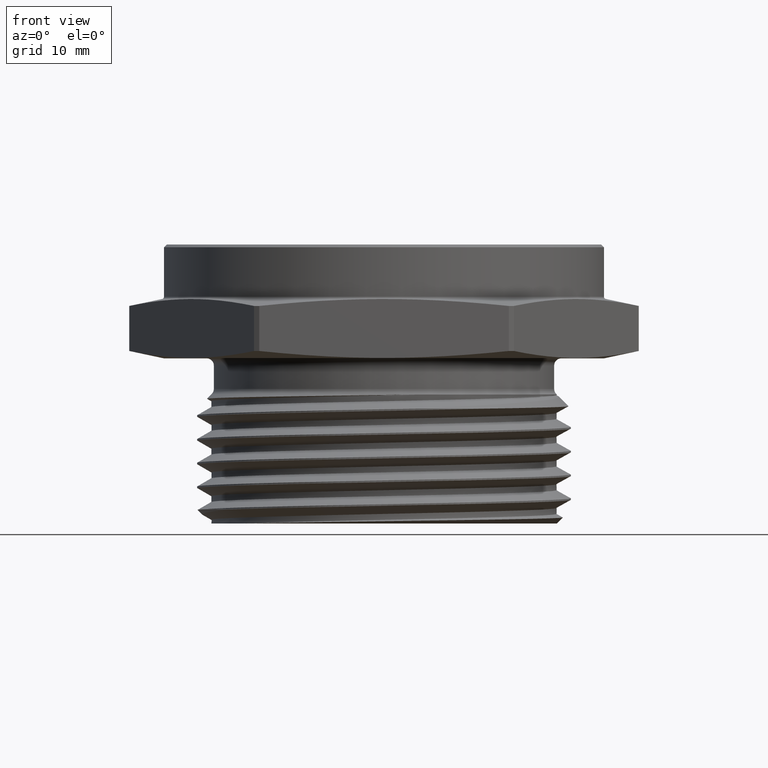
[diagram: clean part render]
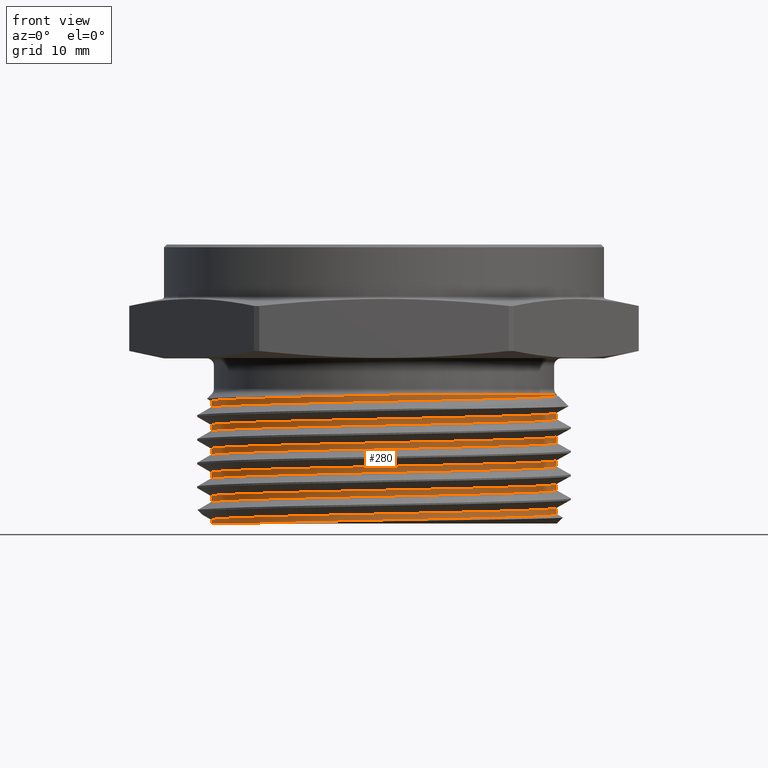
[diagram: same view with one face highlighted and labeled with its STEP entity id]
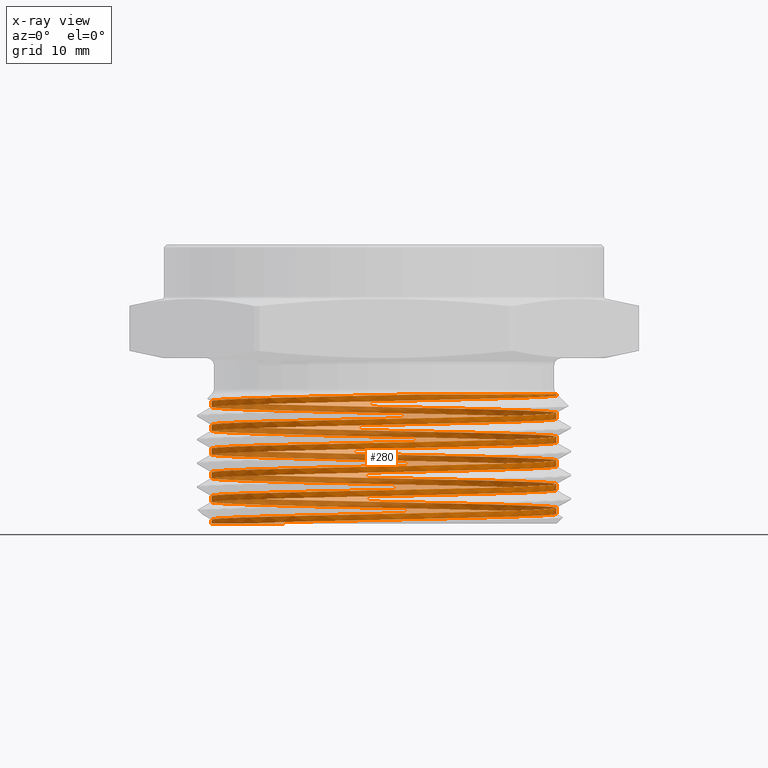
[diagram: x-ray of the same camera — body ghosted, the highlighted face saturated]
A machine part, front view. The second image highlights one B-rep face of the part: STEP entity #280.
The next image is the same camera in x-ray: the body ghosted, the highlighted face saturated — about 43% of this face is hidden behind the body in this view.
In plain terms, the highlighted face is a freeform B-spline surface patch.
Its self-contained STEP definition (entity closure, byte-faithful):
#10 = B_SPLINE_CURVE_WITH_KNOTS ( 'NONE', 3,
 ( #353, #352, #367, #368, #369, #370, #371, #372, #373, #374, #375, #376, #377, #378, #379, #380, #381, #382, #383, #384, #385, #386, #387 ),
 .UNSPECIFIED., .F., .F.,
 ( 4, 2, 1, 2, 2, 2, 2, 2, 2, 2, 2, 4 ),
 ( 0.0000000000000000000, 0.001515089062320364600, 0.003030178124640729300, 0.004545267186961093700, 0.006060356249281458600, 0.009090534373922180500, 0.01212071249856290300, 0.01515089062320362800, 0.01818106874784435100, 0.02121124687248507300, 0.02272633593480543800, 0.02424142499712579600 ),
 .UNSPECIFIED. ) ;
#11 =( BOUNDED_CURVE ( )  B_SPLINE_CURVE ( 2, ( #399, #400, #405, #406, #407, #408, #409, #410, #411, #412, #413, #414, #415, #416, #417, #418, #419, #420, #421, #422, #423, #424, #425, #426, #427, #428, #429, #430, #431, #432, #433, #434, #435, #436, #437, #438, #439, #440, #441, #442, #443, #444, #445, #446, #447, #448, #449, #450, #451, #452, #453, #454, #455, #456, #457, #458, #459, #460, #461, #462, #463, #464, #465, #466, #467, #468, #469, #470, #471, #472, #473, #474, #475, #476, #477, #478, #479, #480, #481, #482, #483, #484, #485, #486, #487, #488, #489, #490, #491, #492, #493, #494, #495, #496, #497, #498, #499, #500, #501, #502, #503, #504, #505, #506, #507, #508, #509, #510, #511, #512, #513 ),
 .UNSPECIFIED., .F., .F. ) 
 B_SPLINE_CURVE_WITH_KNOTS ( ( 3, 2, 2, 2, 2, 2, 2, 2, 2, 2, 2, 2, 2, 2, 2, 2, 2, 2, 2, 2, 2, 2, 2, 2, 2, 2, 2, 2, 2, 2, 2, 2, 2, 2, 2, 2, 2, 2, 2, 2, 2, 2, 2, 2, 2, 2, 2, 2, 2, 2, 2, 2, 2, 2, 2, 3 ),
 ( 0.1205417353397868800, 0.1285714285714285600, 0.1428571428571428500, 0.1571428571428571400, 0.1714285714285714300, 0.1857142857142857200, 0.2000000000000000100, 0.2142857142857142700, 0.2285714285714285600, 0.2428571428571428500, 0.2571428571428571200, 0.2714285714285714100, 0.2857142857142857000, 0.2999999999999999900, 0.3142857142857142800, 0.3285714285714286300, 0.3428571428571428600, 0.3571428571428571500, 0.3714285714285714400, 0.3857142857142856800, 0.4000000000000000200, 0.4142857142857142600, 0.4285714285714284900, 0.4428571428571428400, 0.4571428571428570700, 0.4714285714285714200, 0.4857142857142856500, 0.5000000000000000000, 0.5142857142857142300, 0.5285714285714285800, 0.5428571428571428200, 0.5571428571428571600, 0.5714285714285714000, 0.5857142857142857400, 0.5999999999999999800, 0.6142857142857143200, 0.6285714285714285600, 0.6428571428571429000, 0.6571428571428571400, 0.6714285714285713700, 0.6857142857142857200, 0.6999999999999999600, 0.7142857142857143000, 0.7285714285714285400, 0.7428571428571428800, 0.7571428571428571200, 0.7714285714285714600, 0.7857142857142855900, 0.8000000000000000400, 0.8142857142857143900, 0.8285714285714286300, 0.8428571428571428600, 0.8571428571428571000, 0.8714285714285714400, 0.8857142857142855700, 0.8973191002225197100 ),
 .UNSPECIFIED. ) 
 CURVE ( )  GEOMETRIC_REPRESENTATION_ITEM ( )  RATIONAL_B_SPLINE_CURVE ( ( 0.9759054894038437000, 0.9724899188113560500, 1.000000000000000000, 0.9510565162951535300, 1.000000000000000000, 0.9510565162951535300, 1.000000000000000000, 0.9510565162951535300, 1.000000000000000000, 0.9510565162951535300, 1.000000000000000000, 0.9510565162951535300, 1.000000000000000000, 0.9510565162951535300, 1.000000000000000000, 0.9510565162951535300, 1.000000000000000000, 0.9510565162951535300, 1.000000000000000000, 0.9510565162951535300, 1.000000000000000000, 0.9510565162951535300, 1.000000000000000000, 0.9510565162951535300, 1.000000000000000000, 0.9510565162951535300, 1.000000000000000000, 0.9510565162951535300, 1.000000000000000000, 0.9510565162951535300, 1.000000000000000000, 0.9510565162951535300, 1.000000000000000000, 0.9510565162951535300, 1.000000000000000000, 0.9510565162951535300, 1.000000000000000000, 0.9510565162951535300, 1.000000000000000000, 0.9510565162951535300, 1.000000000000000000, 0.9510565162951535300, 1.000000000000000000, 0.9510565162951535300, 1.000000000000000000, 0.9510565162951535300, 1.000000000000000000, 0.9510565162951535300, 1.000000000000000000, 0.9510565162951535300, 1.000000000000000000, 0.9510565162951535300, 1.000000000000000000, 0.9510565162951535300, 1.000000000000000000, 0.9510565162951535300, 1.000000000000000000, 0.9510565162951535300, 1.000000000000000000, 0.9510565162951535300, 1.000000000000000000, 0.9510565162951535300, 1.000000000000000000, 0.9510565162951535300, 1.000000000000000000, 0.9510565162951535300, 1.000000000000000000, 0.9510565162951535300, 1.000000000000000000, 0.9510565162951535300, 1.000000000000000000, 0.9510565162951535300, 1.000000000000000000, 0.9510565162951535300, 1.000000000000000000, 0.9510565162951535300, 1.000000000000000000, 0.9510565162951535300, 1.000000000000000000, 0.9510565162951535300, 1.000000000000000000, 0.9510565162951535300, 1.000000000000000000, 0.9510565162951535300, 1.000000000000000000, 0.9510565162951535300, 1.000000000000000000, 0.9510565162951535300, 1.000000000000000000, 0.9510565162951535300, 1.000000000000000000, 0.9510565162951535300, 1.000000000000000000, 0.9510565162951535300, 1.000000000000000000, 0.9510565162951535300, 1.000000000000000000, 0.9510565162951535300, 1.000000000000000000, 0.9510565162951535300, 1.000000000000000000, 0.9510565162951535300, 1.000000000000000000, 0.9510565162951535300, 1.000000000000000000, 0.9510565162951535300, 1.000000000000000000, 0.9510565162951535300, 1.000000000000000000, 0.9602413965152942800, 0.9850775636270887600 ) ) 
 REPRESENTATION_ITEM ( '' )  );
#12 =( BOUNDED_CURVE ( )  B_SPLINE_CURVE ( 2, ( #394, #395, #515, #516, #517, #518, #519, #520, #521, #522, #523, #524, #525, #526, #527, #528, #529, #530, #531, #532, #533, #534, #535, #536, #537, #538, #539, #540, #541, #542, #543, #544, #545, #546, #547, #548, #549, #550, #551, #552, #553, #554, #555, #556, #557, #558, #559, #560, #561, #562, #563, #564, #565, #566, #567, #568, #569, #570, #571, #572, #573, #574, #575, #576, #577, #578, #579, #580, #581, #582, #583, #584, #585, #586, #587, #588, #589, #590, #591, #592, #593, #594, #595, #596, #597, #598, #599, #600, #601, #602, #603, #604, #605, #606, #607, #608, #609, #610, #611, #612, #613, #614, #615, #616, #617, #618, #619, #620, #621, #622, #623, #624, #625 ),
 .UNSPECIFIED., .F., .F. ) 
 B_SPLINE_CURVE_WITH_KNOTS ( ( 3, 2, 2, 2, 2, 2, 2, 2, 2, 2, 2, 2, 2, 2, 2, 2, 2, 2, 2, 2, 2, 2, 2, 2, 2, 2, 2, 2, 2, 2, 2, 2, 2, 2, 2, 2, 2, 2, 2, 2, 2, 2, 2, 2, 2, 2, 2, 2, 2, 2, 2, 2, 2, 2, 2, 2, 3 ),
 ( 0.1561963735778175700, 0.1571428571428571400, 0.1714285714285714300, 0.1857142857142857200, 0.2000000000000000100, 0.2142857142857142700, 0.2285714285714285600, 0.2428571428571428500, 0.2571428571428571200, 0.2714285714285714100, 0.2857142857142857000, 0.2999999999999999900, 0.3142857142857142800, 0.3285714285714285700, 0.3428571428571428600, 0.3571428571428571500, 0.3714285714285714400, 0.3857142857142857300, 0.4000000000000000200, 0.4142857142857143100, 0.4285714285714285500, 0.4428571428571428400, 0.4571428571428571300, 0.4714285714285714200, 0.4857142857142857700, 0.5000000000000000000, 0.5142857142857142300, 0.5285714285714285800, 0.5428571428571428200, 0.5571428571428571600, 0.5714285714285714000, 0.5857142857142857400, 0.5999999999999998700, 0.6142857142857143200, 0.6285714285714285600, 0.6428571428571429000, 0.6571428571428571400, 0.6714285714285713700, 0.6857142857142857200, 0.6999999999999999600, 0.7142857142857143000, 0.7285714285714285400, 0.7428571428571428800, 0.7571428571428571200, 0.7714285714285714600, 0.7857142857142857000, 0.8000000000000000400, 0.8142857142857141700, 0.8285714285714285100, 0.8428571428571428600, 0.8571428571428571000, 0.8714285714285714400, 0.8857142857142856800, 0.9000000000000000200, 0.9142857142857142600, 0.9285714285714286000, 0.9331567310335348000 ),
 .UNSPECIFIED. ) 
 CURVE ( )  GEOMETRIC_REPRESENTATION_ITEM ( )  RATIONAL_B_SPLINE_CURVE ( ( 0.9939442935361970700, 0.9967573057940306600, 1.000000000000000000, 0.9510565162951535300, 1.000000000000000000, 0.9510565162951535300, 1.000000000000000000, 0.9510565162951535300, 1.000000000000000000, 0.9510565162951535300, 1.000000000000000000, 0.9510565162951535300, 1.000000000000000000, 0.9510565162951535300, 1.000000000000000000, 0.9510565162951535300, 1.000000000000000000, 0.9510565162951535300, 1.000000000000000000, 0.9510565162951535300, 1.000000000000000000, 0.9510565162951535300, 1.000000000000000000, 0.9510565162951535300, 1.000000000000000000, 0.9510565162951535300, 1.000000000000000000, 0.9510565162951535300, 1.000000000000000000, 0.9510565162951535300, 1.000000000000000000, 0.9510565162951535300, 1.000000000000000000, 0.9510565162951535300, 1.000000000000000000, 0.9510565162951535300, 1.000000000000000000, 0.9510565162951535300, 1.000000000000000000, 0.9510565162951535300, 1.000000000000000000, 0.9510565162951535300, 1.000000000000000000, 0.9510565162951535300, 1.000000000000000000, 0.9510565162951535300, 1.000000000000000000, 0.9510565162951535300, 1.000000000000000000, 0.9510565162951535300, 1.000000000000000000, 0.9510565162951535300, 1.000000000000000000, 0.9510565162951535300, 1.000000000000000000, 0.9510565162951535300, 1.000000000000000000, 0.9510565162951535300, 1.000000000000000000, 0.9510565162951535300, 1.000000000000000000, 0.9510565162951535300, 1.000000000000000000, 0.9510565162951535300, 1.000000000000000000, 0.9510565162951535300, 1.000000000000000000, 0.9510565162951535300, 1.000000000000000000, 0.9510565162951535300, 1.000000000000000000, 0.9510565162951535300, 1.000000000000000000, 0.9510565162951535300, 1.000000000000000000, 0.9510565162951535300, 1.000000000000000000, 0.9510565162951535300, 1.000000000000000000, 0.9510565162951535300, 1.000000000000000000, 0.9510565162951535300, 1.000000000000000000, 0.9510565162951535300, 1.000000000000000000, 0.9510565162951535300, 1.000000000000000000, 0.9510565162951535300, 1.000000000000000000, 0.9510565162951535300, 1.000000000000000000, 0.9510565162951535300, 1.000000000000000000, 0.9510565162951535300, 1.000000000000000000, 0.9510565162951535300, 1.000000000000000000, 0.9510565162951535300, 1.000000000000000000, 0.9510565162951535300, 1.000000000000000000, 0.9510565162951535300, 1.000000000000000000, 0.9510565162951535300, 1.000000000000000000, 0.9510565162951535300, 1.000000000000000000, 0.9510565162951535300, 1.000000000000000000, 0.9510565162951535300, 1.000000000000000000, 0.9842905526564882400, 0.9786656647745308700 ) ) 
 REPRESENTATION_ITEM ( '' )  );
#17 = B_SPLINE_CURVE_WITH_KNOTS ( 'NONE', 3,
 ( #670, #672, #703, #704, #705, #706, #707, #708, #709, #710, #711, #712, #713, #714, #715, #716, #717, #718, #719, #720, #721, #722, #723, #724 ),
 .UNSPECIFIED., .F., .F.,
 ( 4, 2, 2, 2, 2, 2, 2, 2, 2, 2, 2, 4 ),
 ( 0.003106493126508198100, 0.004432617551747326500, 0.005758741976986453100, 0.008410990827464708000, 0.01106323967794296500, 0.01371548852842122100, 0.01636773737889948100, 0.01769386180413860800, 0.01901998622937773800, 0.02167223507985599500, 0.02299835950509512500, 0.02432448393033425200 ),
 .UNSPECIFIED. ) ;
#18 = B_SPLINE_CURVE_WITH_KNOTS ( 'NONE', 3,
 ( #732, #728, #734, #735, #736, #737 ),
 .UNSPECIFIED., .F., .F.,
 ( 4, 2, 4 ),
 ( 2.720399444583038000E-015, 0.001553246563255459300, 0.003106493126508198100 ),
 .UNSPECIFIED. ) ;
#154 = VERTEX_POINT ( 'NONE', #3346 ) ;
#167 = EDGE_LOOP ( 'NONE', ( #3053, #3060, #3059, #3057, #3058 ) ) ;
#280 = ADVANCED_FACE ( 'NONE', ( #2137 ), #1783, .F. ) ;
#352 = CARTESIAN_POINT ( 'NONE',  ( -0.3535519143512350100, 0.4933772083478243900, -0.5800000000000000700 ) ) ;
#353 = CARTESIAN_POINT ( 'NONE',  ( -0.3370093885856370000, 0.5044292760190817200, -0.5799999999999999600 ) ) ;
#367 = CARTESIAN_POINT ( 'NONE',  ( -0.3695666063989895300, 0.4814952068070786900, -0.5799999999999999600 ) ) ;
#368 = CARTESIAN_POINT ( 'NONE',  ( -0.4002091387736996200, 0.4563439010061060600, -0.5799999999999998500 ) ) ;
#369 = CARTESIAN_POINT ( 'NONE',  ( -0.4294571621025096700, 0.4298297681948723400, -0.5800000000000000700 ) ) ;
#370 = CARTESIAN_POINT ( 'NONE',  ( -0.4559653641252112700, 0.4006380604405189700, -0.5800000000000000700 ) ) ;
#371 = CARTESIAN_POINT ( 'NONE',  ( -0.4810887831903928900, 0.3700930307959943200, -0.5800000000000001800 ) ) ;
#372 = CARTESIAN_POINT ( 'NONE',  ( -0.4929882749556295200, 0.3540917160914863700, -0.5800000000000000700 ) ) ;
#373 = CARTESIAN_POINT ( 'NONE',  ( -0.5261332149194912800, 0.3046058161819049100, -0.5799999999999998500 ) ) ;
#374 = CARTESIAN_POINT ( 'NONE',  ( -0.5449916698083485700, 0.2694176457552701600, -0.5799999999999997400 ) ) ;
#375 = CARTESIAN_POINT ( 'NONE',  ( -0.5754673472415010600, 0.1960589713928790100, -0.5799999999999997400 ) ) ;
#376 = CARTESIAN_POINT ( 'NONE',  ( -0.5871005776276112500, 0.1578480598678372600, -0.5799999999999999600 ) ) ;
#377 = CARTESIAN_POINT ( 'NONE',  ( -0.6026741094545333700, 0.07991880909961308900, -0.5800000000000000700 ) ) ;
#378 = CARTESIAN_POINT ( 'NONE',  ( -0.6066172920940867700, 0.04019569440933264800, -0.5800000000000001800 ) ) ;
#379 = CARTESIAN_POINT ( 'NONE',  ( -0.6066823012119317800, -0.03920227433205848700, -0.5800000000000001800 ) ) ;
#380 = CARTESIAN_POINT ( 'NONE',  ( -0.6028072835461477700, -0.07892555562666712900, -0.5800000000000001800 ) ) ;
#381 = CARTESIAN_POINT ( 'NONE',  ( -0.5873442509859494500, -0.1569477469128426300, -0.5800000000000001800 ) ) ;
#382 = CARTESIAN_POINT ( 'NONE',  ( -0.5759160264198345300, -0.1946876033231859400, -0.5799999999999998500 ) ) ;
#383 = CARTESIAN_POINT ( 'NONE',  ( -0.5533508773734937500, -0.2494325690015621600, -0.5799999999999997400 ) ) ;
#384 = CARTESIAN_POINT ( 'NONE',  ( -0.5448935134140974200, -0.2674142125736477800, -0.5800000000000001800 ) ) ;
#385 = CARTESIAN_POINT ( 'NONE',  ( -0.5262202494582871600, -0.3025087620337650900, -0.5800000000000000700 ) ) ;
#386 = CARTESIAN_POINT ( 'NONE',  ( -0.5160415448809204700, -0.3195639995610080600, -0.5799999999999996300 ) ) ;
#387 = CARTESIAN_POINT ( 'NONE',  ( -0.5050184525457394000, -0.3361258470994258900, -0.5800000000000000700 ) ) ;
#394 = CARTESIAN_POINT ( 'NONE',  ( -0.5050184525457394000, -0.3361258470994258900, -0.5800000000000000700 ) ) ;
#395 = CARTESIAN_POINT ( 'NONE',  ( -0.4981143701863132700, -0.3464990124465539600, -0.5797333072155793600 ) ) ;
#399 = CARTESIAN_POINT ( 'NONE',  ( -0.3370093885856370000, 0.5044292760190817200, -0.5799999999999999600 ) ) ;
#400 = CARTESIAN_POINT ( 'NONE',  ( -0.4271031116061191900, 0.4442376258631665600, -0.5775936169182226400 ) ) ;
#405 = CARTESIAN_POINT ( 'NONE',  ( -0.4907901617291762200, 0.3565799204243685300, -0.5753032399406747800 ) ) ;
#406 = CARTESIAN_POINT ( 'NONE',  ( -0.6066500011562159200, 0.1971125301612256800, -0.5711365732740081300 ) ) ;
#407 = CARTESIAN_POINT ( 'NONE',  ( -0.6066499999999999100, -3.558467075867448100E-009, -0.5669699066073414800 ) ) ;
#408 = CARTESIAN_POINT ( 'NONE',  ( -0.6066499988437839000, -0.1971125372781596400, -0.5628032399406748300 ) ) ;
#409 = CARTESIAN_POINT ( 'NONE',  ( -0.4907901575459472900, -0.3565799261820891100, -0.5586365732740081700 ) ) ;
#410 = CARTESIAN_POINT ( 'NONE',  ( -0.3749303162481107400, -0.5160473150860185300, -0.5544699066073416300 ) ) ;
#411 = CARTESIAN_POINT ( 'NONE',  ( -0.1874651562532585200, -0.5769584367100816200, -0.5503032399406747600 ) ) ;
#412 = CARTESIAN_POINT ( 'NONE',  ( 3.741593667411983200E-009, -0.6378695583341447200, -0.5461365732740082200 ) ) ;
#413 = CARTESIAN_POINT ( 'NONE',  ( 0.1874651630218650800, -0.5769584345108280700, -0.5419699066073415700 ) ) ;
#414 = CARTESIAN_POINT ( 'NONE',  ( 0.3749303223021364700, -0.5160473106875114200, -0.5378032399406749200 ) ) ;
#415 = CARTESIAN_POINT ( 'NONE',  ( 0.4907901617291762200, -0.3565799204243684800, -0.5336365732740081500 ) ) ;
#416 = CARTESIAN_POINT ( 'NONE',  ( 0.6066500011562159200, -0.1971125301612256000, -0.5294699066073415000 ) ) ;
#417 = CARTESIAN_POINT ( 'NONE',  ( 0.6066499999999999100, 3.558467001574249900E-009, -0.5253032399406748500 ) ) ;
#418 = CARTESIAN_POINT ( 'NONE',  ( 0.6066499988437841200, 0.1971125372781595600, -0.5211365732740082000 ) ) ;
#419 = CARTESIAN_POINT ( 'NONE',  ( 0.4907901575459472900, 0.3565799261820890600, -0.5169699066073415400 ) ) ;
#420 = CARTESIAN_POINT ( 'NONE',  ( 0.3749303162481107400, 0.5160473150860185300, -0.5128032399406747800 ) ) ;
#421 = CARTESIAN_POINT ( 'NONE',  ( 0.1874651562532586000, 0.5769584367100816200, -0.5086365732740082400 ) ) ;
#422 = CARTESIAN_POINT ( 'NONE',  ( -3.741593589295492100E-009, 0.6378695583341447200, -0.5044699066073414800 ) ) ;
#423 = CARTESIAN_POINT ( 'NONE',  ( -0.1874651630218650000, 0.5769584345108280700, -0.5003032399406748300 ) ) ;
#424 = CARTESIAN_POINT ( 'NONE',  ( -0.3749303223021363500, 0.5160473106875115300, -0.4961365732740080600 ) ) ;
#425 = CARTESIAN_POINT ( 'NONE',  ( -0.4907901617291762200, 0.3565799204243685300, -0.4919699066073415200 ) ) ;
#426 = CARTESIAN_POINT ( 'NONE',  ( -0.6066500011562159200, 0.1971125301612256800, -0.4878032399406748200 ) ) ;
#427 = CARTESIAN_POINT ( 'NONE',  ( -0.6066499999999999100, -3.558467075867448100E-009, -0.4836365732740082200 ) ) ;
#428 = CARTESIAN_POINT ( 'NONE',  ( -0.6066499988437839000, -0.1971125372781596400, -0.4794699066073414600 ) ) ;
#429 = CARTESIAN_POINT ( 'NONE',  ( -0.4907901575459472900, -0.3565799261820891100, -0.4753032399406748600 ) ) ;
#430 = CARTESIAN_POINT ( 'NONE',  ( -0.3749303162481107400, -0.5160473150860185300, -0.4711365732740081500 ) ) ;
#431 = CARTESIAN_POINT ( 'NONE',  ( -0.1874651562532585200, -0.5769584367100816200, -0.4669699066073415000 ) ) ;
#432 = CARTESIAN_POINT ( 'NONE',  ( 3.741593667411983200E-009, -0.6378695583341447200, -0.4628032399406748500 ) ) ;
#433 = CARTESIAN_POINT ( 'NONE',  ( 0.1874651630218650800, -0.5769584345108280700, -0.4586365732740082000 ) ) ;
#434 = CARTESIAN_POINT ( 'NONE',  ( 0.3749303223021364700, -0.5160473106875114200, -0.4544699066073415400 ) ) ;
#435 = CARTESIAN_POINT ( 'NONE',  ( 0.4907901617291762200, -0.3565799204243684800, -0.4503032399406748400 ) ) ;
#436 = CARTESIAN_POINT ( 'NONE',  ( 0.6066500011562159200, -0.1971125301612256000, -0.4461365732740081300 ) ) ;
#437 = CARTESIAN_POINT ( 'NONE',  ( 0.6066499999999999100, 3.558467001574249900E-009, -0.4419699066073414800 ) ) ;
#438 = CARTESIAN_POINT ( 'NONE',  ( 0.6066499988437841200, 0.1971125372781595600, -0.4378032399406748300 ) ) ;
#439 = CARTESIAN_POINT ( 'NONE',  ( 0.4907901575459472900, 0.3565799261820890600, -0.4336365732740082300 ) ) ;
#440 = CARTESIAN_POINT ( 'NONE',  ( 0.3749303162481107400, 0.5160473150860185300, -0.4294699066073415800 ) ) ;
#441 = CARTESIAN_POINT ( 'NONE',  ( 0.1874651562532586000, 0.5769584367100816200, -0.4253032399406748700 ) ) ;
#442 = CARTESIAN_POINT ( 'NONE',  ( -3.741593589295492100E-009, 0.6378695583341447200, -0.4211365732740081100 ) ) ;
#443 = CARTESIAN_POINT ( 'NONE',  ( -0.1874651630218650000, 0.5769584345108280700, -0.4169699066073415100 ) ) ;
#444 = CARTESIAN_POINT ( 'NONE',  ( -0.3749303223021363500, 0.5160473106875115300, -0.4128032399406747500 ) ) ;
#445 = CARTESIAN_POINT ( 'NONE',  ( -0.4907901617291762200, 0.3565799204243685300, -0.4086365732740082100 ) ) ;
#446 = CARTESIAN_POINT ( 'NONE',  ( -0.6066500011562159200, 0.1971125301612256800, -0.4044699066073415000 ) ) ;
#447 = CARTESIAN_POINT ( 'NONE',  ( -0.6066499999999999100, -3.558467075867448100E-009, -0.4003032399406748500 ) ) ;
#448 = CARTESIAN_POINT ( 'NONE',  ( -0.6066499988437839000, -0.1971125372781596400, -0.3961365732740081400 ) ) ;
#449 = CARTESIAN_POINT ( 'NONE',  ( -0.4907901575459472900, -0.3565799261820891100, -0.3919699066073414900 ) ) ;
#450 = CARTESIAN_POINT ( 'NONE',  ( -0.3749303162481107400, -0.5160473150860185300, -0.3878032399406748400 ) ) ;
#451 = CARTESIAN_POINT ( 'NONE',  ( -0.1874651562532585200, -0.5769584367100816200, -0.3836365732740081900 ) ) ;
#452 = CARTESIAN_POINT ( 'NONE',  ( 3.741593667411983200E-009, -0.6378695583341447200, -0.3794699066073415300 ) ) ;
#453 = CARTESIAN_POINT ( 'NONE',  ( 0.1874651630218650800, -0.5769584345108280700, -0.3753032399406748800 ) ) ;
#454 = CARTESIAN_POINT ( 'NONE',  ( 0.3749303223021364700, -0.5160473106875114200, -0.3711365732740081700 ) ) ;
#455 = CARTESIAN_POINT ( 'NONE',  ( 0.4907901617291762200, -0.3565799204243684800, -0.3669699066073415200 ) ) ;
#456 = CARTESIAN_POINT ( 'NONE',  ( 0.6066500011562159200, -0.1971125301612256000, -0.3628032399406748200 ) ) ;
#457 = CARTESIAN_POINT ( 'NONE',  ( 0.6066499999999999100, 3.558467001574249900E-009, -0.3586365732740081600 ) ) ;
#458 = CARTESIAN_POINT ( 'NONE',  ( 0.6066499988437841200, 0.1971125372781595600, -0.3544699066073415700 ) ) ;
#459 = CARTESIAN_POINT ( 'NONE',  ( 0.4907901575459472900, 0.3565799261820890600, -0.3503032399406749200 ) ) ;
#460 = CARTESIAN_POINT ( 'NONE',  ( 0.3749303162481107400, 0.5160473150860185300, -0.3461365732740082100 ) ) ;
#461 = CARTESIAN_POINT ( 'NONE',  ( 0.1874651562532586000, 0.5769584367100816200, -0.3419699066073415600 ) ) ;
#462 = CARTESIAN_POINT ( 'NONE',  ( -3.741593589295492100E-009, 0.6378695583341447200, -0.3378032399406749000 ) ) ;
#463 = CARTESIAN_POINT ( 'NONE',  ( -0.1874651630218650000, 0.5769584345108280700, -0.3336365732740082000 ) ) ;
#464 = CARTESIAN_POINT ( 'NONE',  ( -0.3749303223021363500, 0.5160473106875115300, -0.3294699066073414900 ) ) ;
#465 = CARTESIAN_POINT ( 'NONE',  ( -0.4907901617291762200, 0.3565799204243685300, -0.3253032399406748900 ) ) ;
#466 = CARTESIAN_POINT ( 'NONE',  ( -0.6066500011562159200, 0.1971125301612256800, -0.3211365732740081900 ) ) ;
#467 = CARTESIAN_POINT ( 'NONE',  ( -0.6066499999999999100, -3.558467075867448100E-009, -0.3169699066073415300 ) ) ;
#468 = CARTESIAN_POINT ( 'NONE',  ( -0.6066499988437839000, -0.1971125372781596400, -0.3128032399406748800 ) ) ;
#469 = CARTESIAN_POINT ( 'NONE',  ( -0.4907901575459472900, -0.3565799261820891100, -0.3086365732740081700 ) ) ;
#470 = CARTESIAN_POINT ( 'NONE',  ( -0.3749303162481107400, -0.5160473150860185300, -0.3044699066073414700 ) ) ;
#471 = CARTESIAN_POINT ( 'NONE',  ( -0.1874651562532585200, -0.5769584367100816200, -0.3003032399406748700 ) ) ;
#472 = CARTESIAN_POINT ( 'NONE',  ( 3.741593667411983200E-009, -0.6378695583341447200, -0.2961365732740081100 ) ) ;
#473 = CARTESIAN_POINT ( 'NONE',  ( 0.1874651630218650800, -0.5769584345108280700, -0.2919699066073415100 ) ) ;
#474 = CARTESIAN_POINT ( 'NONE',  ( 0.3749303223021364700, -0.5160473106875114200, -0.2878032399406748600 ) ) ;
#475 = CARTESIAN_POINT ( 'NONE',  ( 0.4907901617291762200, -0.3565799204243684800, -0.2836365732740081500 ) ) ;
#476 = CARTESIAN_POINT ( 'NONE',  ( 0.6066500011562159200, -0.1971125301612256000, -0.2794699066073415000 ) ) ;
#477 = CARTESIAN_POINT ( 'NONE',  ( 0.6066499999999999100, 3.558467001574249900E-009, -0.2753032399406748500 ) ) ;
#478 = CARTESIAN_POINT ( 'NONE',  ( 0.6066499988437841200, 0.1971125372781595600, -0.2711365732740082500 ) ) ;
#479 = CARTESIAN_POINT ( 'NONE',  ( 0.4907901575459472900, 0.3565799261820890600, -0.2669699066073414900 ) ) ;
#480 = CARTESIAN_POINT ( 'NONE',  ( 0.3749303162481107400, 0.5160473150860185300, -0.2628032399406748400 ) ) ;
#481 = CARTESIAN_POINT ( 'NONE',  ( 0.1874651562532586000, 0.5769584367100816200, -0.2586365732740082400 ) ) ;
#482 = CARTESIAN_POINT ( 'NONE',  ( -3.741593589295492100E-009, 0.6378695583341447200, -0.2544699066073414800 ) ) ;
#483 = CARTESIAN_POINT ( 'NONE',  ( -0.1874651630218650000, 0.5769584345108280700, -0.2503032399406748800 ) ) ;
#484 = CARTESIAN_POINT ( 'NONE',  ( -0.3749303223021363500, 0.5160473106875115300, -0.2461365732740082000 ) ) ;
#485 = CARTESIAN_POINT ( 'NONE',  ( -0.4907901617291762200, 0.3565799204243685300, -0.2419699066073415200 ) ) ;
#486 = CARTESIAN_POINT ( 'NONE',  ( -0.6066500011562159200, 0.1971125301612256800, -0.2378032399406748700 ) ) ;
#487 = CARTESIAN_POINT ( 'NONE',  ( -0.6066499999999999100, -3.558467075867448100E-009, -0.2336365732740082200 ) ) ;
#488 = CARTESIAN_POINT ( 'NONE',  ( -0.6066499988437839000, -0.1971125372781596400, -0.2294699066073415100 ) ) ;
#489 = CARTESIAN_POINT ( 'NONE',  ( -0.4907901575459472900, -0.3565799261820891100, -0.2253032399406748600 ) ) ;
#490 = CARTESIAN_POINT ( 'NONE',  ( -0.3749303162481107400, -0.5160473150860185300, -0.2211365732740082100 ) ) ;
#491 = CARTESIAN_POINT ( 'NONE',  ( -0.1874651562532585200, -0.5769584367100816200, -0.2169699066073415800 ) ) ;
#492 = CARTESIAN_POINT ( 'NONE',  ( 3.741593667411983200E-009, -0.6378695583341447200, -0.2128032399406748200 ) ) ;
#493 = CARTESIAN_POINT ( 'NONE',  ( 0.1874651630218650800, -0.5769584345108280700, -0.2086365732740082200 ) ) ;
#494 = CARTESIAN_POINT ( 'NONE',  ( 0.3749303223021364700, -0.5160473106875114200, -0.2044699066073415400 ) ) ;
#495 = CARTESIAN_POINT ( 'NONE',  ( 0.4907901617291762200, -0.3565799204243684800, -0.2003032399406748700 ) ) ;
#496 = CARTESIAN_POINT ( 'NONE',  ( 0.6066500011562159200, -0.1971125301612256000, -0.1961365732740082100 ) ) ;
#497 = CARTESIAN_POINT ( 'NONE',  ( 0.6066499999999999100, 3.558467001574249900E-009, -0.1919699066073415600 ) ) ;
#498 = CARTESIAN_POINT ( 'NONE',  ( 0.6066499988437841200, 0.1971125372781595600, -0.1878032399406748500 ) ) ;
#499 = CARTESIAN_POINT ( 'NONE',  ( 0.4907901575459472900, 0.3565799261820890600, -0.1836365732740082000 ) ) ;
#500 = CARTESIAN_POINT ( 'NONE',  ( 0.3749303162481107400, 0.5160473150860185300, -0.1794699066073415500 ) ) ;
#501 = CARTESIAN_POINT ( 'NONE',  ( 0.1874651562532586000, 0.5769584367100816200, -0.1753032399406748400 ) ) ;
#502 = CARTESIAN_POINT ( 'NONE',  ( -3.741593589295492100E-009, 0.6378695583341447200, -0.1711365732740081600 ) ) ;
#503 = CARTESIAN_POINT ( 'NONE',  ( -0.1874651630218650000, 0.5769584345108280700, -0.1669699066073415700 ) ) ;
#504 = CARTESIAN_POINT ( 'NONE',  ( -0.3749303223021363500, 0.5160473106875115300, -0.1628032399406748300 ) ) ;
#505 = CARTESIAN_POINT ( 'NONE',  ( -0.4907901617291762200, 0.3565799204243685300, -0.1586365732740082100 ) ) ;
#506 = CARTESIAN_POINT ( 'NONE',  ( -0.6066500011562159200, 0.1971125301612256800, -0.1544699066073415600 ) ) ;
#507 = CARTESIAN_POINT ( 'NONE',  ( -0.6066499999999999100, -3.558467075867448100E-009, -0.1503032399406748500 ) ) ;
#508 = CARTESIAN_POINT ( 'NONE',  ( -0.6066499988437839000, -0.1971125372781596400, -0.1461365732740082000 ) ) ;
#509 = CARTESIAN_POINT ( 'NONE',  ( -0.4907901575459472900, -0.3565799261820891100, -0.1419699066073415400 ) ) ;
#510 = CARTESIAN_POINT ( 'NONE',  ( -0.3749303162481107400, -0.5160473150860185300, -0.1378032399406749200 ) ) ;
#511 = CARTESIAN_POINT ( 'NONE',  ( -0.1874651562532585200, -0.5769584367100816200, -0.1336365732740081900 ) ) ;
#512 = CARTESIAN_POINT ( 'NONE',  ( -0.03663689977845444700, -0.6259655070090879300, -0.1302842113275949600 ) ) ;
#513 = CARTESIAN_POINT ( 'NONE',  ( 0.1188785784317565500, -0.5948883139632552600, -0.1268276695295267300 ) ) ;
#515 = CARTESIAN_POINT ( 'NONE',  ( -0.4907901575459474600, -0.3565799261820891700, -0.5794699066073415400 ) ) ;
#516 = CARTESIAN_POINT ( 'NONE',  ( -0.3749303162481109100, -0.5160473150860186400, -0.5753032399406748900 ) ) ;
#517 = CARTESIAN_POINT ( 'NONE',  ( -0.1874651562532586000, -0.5769584367100817300, -0.5711365732740081300 ) ) ;
#518 = CARTESIAN_POINT ( 'NONE',  ( 3.741593667411984000E-009, -0.6378695583341449400, -0.5669699066073414800 ) ) ;
#519 = CARTESIAN_POINT ( 'NONE',  ( 0.1874651630218651400, -0.5769584345108281800, -0.5628032399406748300 ) ) ;
#520 = CARTESIAN_POINT ( 'NONE',  ( 0.3749303223021366300, -0.5160473106875115300, -0.5586365732740082900 ) ) ;
#521 = CARTESIAN_POINT ( 'NONE',  ( 0.4907901617291763900, -0.3565799204243685300, -0.5544699066073415200 ) ) ;
#522 = CARTESIAN_POINT ( 'NONE',  ( 0.6066500011562160300, -0.1971125301612256200, -0.5503032399406747600 ) ) ;
#523 = CARTESIAN_POINT ( 'NONE',  ( 0.6066500000000000200, 3.558467001574251200E-009, -0.5461365732740082200 ) ) ;
#524 = CARTESIAN_POINT ( 'NONE',  ( 0.6066499988437841200, 0.1971125372781596100, -0.5419699066073414600 ) ) ;
#525 = CARTESIAN_POINT ( 'NONE',  ( 0.4907901575459474600, 0.3565799261820891100, -0.5378032399406749200 ) ) ;
#526 = CARTESIAN_POINT ( 'NONE',  ( 0.3749303162481109600, 0.5160473150860185300, -0.5336365732740080400 ) ) ;
#527 = CARTESIAN_POINT ( 'NONE',  ( 0.1874651562532586600, 0.5769584367100817300, -0.5294699066073416100 ) ) ;
#528 = CARTESIAN_POINT ( 'NONE',  ( -3.741593589295493800E-009, 0.6378695583341449400, -0.5253032399406748500 ) ) ;
#529 = CARTESIAN_POINT ( 'NONE',  ( -0.1874651630218650800, 0.5769584345108281800, -0.5211365732740082000 ) ) ;
#530 = CARTESIAN_POINT ( 'NONE',  ( -0.3749303223021365200, 0.5160473106875115300, -0.5169699066073415400 ) ) ;
#531 = CARTESIAN_POINT ( 'NONE',  ( -0.4907901617291763900, 0.3565799204243686500, -0.5128032399406748900 ) ) ;
#532 = CARTESIAN_POINT ( 'NONE',  ( -0.6066500011562160300, 0.1971125301612257400, -0.5086365732740082400 ) ) ;
#533 = CARTESIAN_POINT ( 'NONE',  ( -0.6066500000000000200, -3.558467075867449300E-009, -0.5044699066073415900 ) ) ;
#534 = CARTESIAN_POINT ( 'NONE',  ( -0.6066499988437841200, -0.1971125372781596700, -0.5003032399406748300 ) ) ;
#535 = CARTESIAN_POINT ( 'NONE',  ( -0.4907901575459474600, -0.3565799261820891700, -0.4961365732740082300 ) ) ;
#536 = CARTESIAN_POINT ( 'NONE',  ( -0.3749303162481109100, -0.5160473150860186400, -0.4919699066073415200 ) ) ;
#537 = CARTESIAN_POINT ( 'NONE',  ( -0.1874651562532586000, -0.5769584367100817300, -0.4878032399406748700 ) ) ;
#538 = CARTESIAN_POINT ( 'NONE',  ( 3.741593667411984000E-009, -0.6378695583341449400, -0.4836365732740082200 ) ) ;
#539 = CARTESIAN_POINT ( 'NONE',  ( 0.1874651630218651400, -0.5769584345108281800, -0.4794699066073415700 ) ) ;
#540 = CARTESIAN_POINT ( 'NONE',  ( 0.3749303223021366300, -0.5160473106875115300, -0.4753032399406749200 ) ) ;
#541 = CARTESIAN_POINT ( 'NONE',  ( 0.4907901617291763900, -0.3565799204243685300, -0.4711365732740082100 ) ) ;
#542 = CARTESIAN_POINT ( 'NONE',  ( 0.6066500011562160300, -0.1971125301612256200, -0.4669699066073414500 ) ) ;
#543 = CARTESIAN_POINT ( 'NONE',  ( 0.6066500000000000200, 3.558467001574251200E-009, -0.4628032399406748500 ) ) ;
#544 = CARTESIAN_POINT ( 'NONE',  ( 0.6066499988437841200, 0.1971125372781596100, -0.4586365732740081400 ) ) ;
#545 = CARTESIAN_POINT ( 'NONE',  ( 0.4907901575459474600, 0.3565799261820891100, -0.4544699066073415400 ) ) ;
#546 = CARTESIAN_POINT ( 'NONE',  ( 0.3749303162481109600, 0.5160473150860185300, -0.4503032399406748400 ) ) ;
#547 = CARTESIAN_POINT ( 'NONE',  ( 0.1874651562532586600, 0.5769584367100817300, -0.4461365732740081900 ) ) ;
#548 = CARTESIAN_POINT ( 'NONE',  ( -3.741593589295493800E-009, 0.6378695583341449400, -0.4419699066073414800 ) ) ;
#549 = CARTESIAN_POINT ( 'NONE',  ( -0.1874651630218650800, 0.5769584345108281800, -0.4378032399406748300 ) ) ;
#550 = CARTESIAN_POINT ( 'NONE',  ( -0.3749303223021365200, 0.5160473106875115300, -0.4336365732740080600 ) ) ;
#551 = CARTESIAN_POINT ( 'NONE',  ( -0.4907901617291763900, 0.3565799204243686500, -0.4294699066073415800 ) ) ;
#552 = CARTESIAN_POINT ( 'NONE',  ( -0.6066500011562160300, 0.1971125301612257400, -0.4253032399406749800 ) ) ;
#553 = CARTESIAN_POINT ( 'NONE',  ( -0.6066500000000000200, -3.558467075867449300E-009, -0.4211365732740082200 ) ) ;
#554 = CARTESIAN_POINT ( 'NONE',  ( -0.6066499988437841200, -0.1971125372781596700, -0.4169699066073415700 ) ) ;
#555 = CARTESIAN_POINT ( 'NONE',  ( -0.4907901575459474600, -0.3565799261820891700, -0.4128032399406748600 ) ) ;
#556 = CARTESIAN_POINT ( 'NONE',  ( -0.3749303162481109100, -0.5160473150860186400, -0.4086365732740082100 ) ) ;
#557 = CARTESIAN_POINT ( 'NONE',  ( -0.1874651562532586000, -0.5769584367100817300, -0.4044699066073415600 ) ) ;
#558 = CARTESIAN_POINT ( 'NONE',  ( 3.741593667411984000E-009, -0.6378695583341449400, -0.4003032399406748500 ) ) ;
#559 = CARTESIAN_POINT ( 'NONE',  ( 0.1874651630218651400, -0.5769584345108281800, -0.3961365732740082500 ) ) ;
#560 = CARTESIAN_POINT ( 'NONE',  ( 0.3749303223021366300, -0.5160473106875115300, -0.3919699066073415400 ) ) ;
#561 = CARTESIAN_POINT ( 'NONE',  ( 0.4907901617291763900, -0.3565799204243685300, -0.3878032399406748900 ) ) ;
#562 = CARTESIAN_POINT ( 'NONE',  ( 0.6066500011562160300, -0.1971125301612256200, -0.3836365732740081900 ) ) ;
#563 = CARTESIAN_POINT ( 'NONE',  ( 0.6066500000000000200, 3.558467001574251200E-009, -0.3794699066073415300 ) ) ;
#564 = CARTESIAN_POINT ( 'NONE',  ( 0.6066499988437841200, 0.1971125372781596100, -0.3753032399406748300 ) ) ;
#565 = CARTESIAN_POINT ( 'NONE',  ( 0.4907901575459474600, 0.3565799261820891100, -0.3711365732740082300 ) ) ;
#566 = CARTESIAN_POINT ( 'NONE',  ( 0.3749303162481109600, 0.5160473150860185300, -0.3669699066073414700 ) ) ;
#567 = CARTESIAN_POINT ( 'NONE',  ( 0.1874651562532586600, 0.5769584367100817300, -0.3628032399406748700 ) ) ;
#568 = CARTESIAN_POINT ( 'NONE',  ( -3.741593589295493800E-009, 0.6378695583341449400, -0.3586365732740081600 ) ) ;
#569 = CARTESIAN_POINT ( 'NONE',  ( -0.1874651630218650800, 0.5769584345108281800, -0.3544699066073415700 ) ) ;
#570 = CARTESIAN_POINT ( 'NONE',  ( -0.3749303223021365200, 0.5160473106875115300, -0.3503032399406747500 ) ) ;
#571 = CARTESIAN_POINT ( 'NONE',  ( -0.4907901617291763900, 0.3565799204243686500, -0.3461365732740082600 ) ) ;
#572 = CARTESIAN_POINT ( 'NONE',  ( -0.6066500011562160300, 0.1971125301612257400, -0.3419699066073415600 ) ) ;
#573 = CARTESIAN_POINT ( 'NONE',  ( -0.6066500000000000200, -3.558467075867449300E-009, -0.3378032399406749000 ) ) ;
#574 = CARTESIAN_POINT ( 'NONE',  ( -0.6066499988437841200, -0.1971125372781596700, -0.3336365732740082500 ) ) ;
#575 = CARTESIAN_POINT ( 'NONE',  ( -0.4907901575459474600, -0.3565799261820891700, -0.3294699066073415400 ) ) ;
#576 = CARTESIAN_POINT ( 'NONE',  ( -0.3749303162481109100, -0.5160473150860186400, -0.3253032399406748900 ) ) ;
#577 = CARTESIAN_POINT ( 'NONE',  ( -0.1874651562532586000, -0.5769584367100817300, -0.3211365732740082400 ) ) ;
#578 = CARTESIAN_POINT ( 'NONE',  ( 3.741593667411984000E-009, -0.6378695583341449400, -0.3169699066073415300 ) ) ;
#579 = CARTESIAN_POINT ( 'NONE',  ( 0.1874651630218651400, -0.5769584345108281800, -0.3128032399406748800 ) ) ;
#580 = CARTESIAN_POINT ( 'NONE',  ( 0.3749303223021366300, -0.5160473106875115300, -0.3086365732740082300 ) ) ;
#581 = CARTESIAN_POINT ( 'NONE',  ( 0.4907901617291763900, -0.3565799204243685300, -0.3044699066073415200 ) ) ;
#582 = CARTESIAN_POINT ( 'NONE',  ( 0.6066500011562160300, -0.1971125301612256200, -0.3003032399406748700 ) ) ;
#583 = CARTESIAN_POINT ( 'NONE',  ( 0.6066500000000000200, 3.558467001574251200E-009, -0.2961365732740082200 ) ) ;
#584 = CARTESIAN_POINT ( 'NONE',  ( 0.6066499988437841200, 0.1971125372781596100, -0.2919699066073415700 ) ) ;
#585 = CARTESIAN_POINT ( 'NONE',  ( 0.4907901575459474600, 0.3565799261820891100, -0.2878032399406748600 ) ) ;
#586 = CARTESIAN_POINT ( 'NONE',  ( 0.3749303162481109600, 0.5160473150860185300, -0.2836365732740082100 ) ) ;
#587 = CARTESIAN_POINT ( 'NONE',  ( 0.1874651562532586600, 0.5769584367100817300, -0.2794699066073416100 ) ) ;
#588 = CARTESIAN_POINT ( 'NONE',  ( -3.741593589295493800E-009, 0.6378695583341449400, -0.2753032399406748500 ) ) ;
#589 = CARTESIAN_POINT ( 'NONE',  ( -0.1874651630218650800, 0.5769584345108281800, -0.2711365732740082500 ) ) ;
#590 = CARTESIAN_POINT ( 'NONE',  ( -0.3749303223021365200, 0.5160473106875115300, -0.2669699066073416000 ) ) ;
#591 = CARTESIAN_POINT ( 'NONE',  ( -0.4907901617291763900, 0.3565799204243686500, -0.2628032399406748900 ) ) ;
#592 = CARTESIAN_POINT ( 'NONE',  ( -0.6066500011562160300, 0.1971125301612257400, -0.2586365732740081900 ) ) ;
#593 = CARTESIAN_POINT ( 'NONE',  ( -0.6066500000000000200, -3.558467075867449300E-009, -0.2544699066073415900 ) ) ;
#594 = CARTESIAN_POINT ( 'NONE',  ( -0.6066499988437841200, -0.1971125372781596700, -0.2503032399406748300 ) ) ;
#595 = CARTESIAN_POINT ( 'NONE',  ( -0.4907901575459474600, -0.3565799261820891700, -0.2461365732740082300 ) ) ;
#596 = CARTESIAN_POINT ( 'NONE',  ( -0.3749303162481109100, -0.5160473150860186400, -0.2419699066073415800 ) ) ;
#597 = CARTESIAN_POINT ( 'NONE',  ( -0.1874651562532586000, -0.5769584367100817300, -0.2378032399406749300 ) ) ;
#598 = CARTESIAN_POINT ( 'NONE',  ( 3.741593667411984000E-009, -0.6378695583341449400, -0.2336365732740082200 ) ) ;
#599 = CARTESIAN_POINT ( 'NONE',  ( 0.1874651630218651400, -0.5769584345108281800, -0.2294699066073415700 ) ) ;
#600 = CARTESIAN_POINT ( 'NONE',  ( 0.3749303223021366300, -0.5160473106875115300, -0.2253032399406749400 ) ) ;
#601 = CARTESIAN_POINT ( 'NONE',  ( 0.4907901617291763900, -0.3565799204243685300, -0.2211365732740082100 ) ) ;
#602 = CARTESIAN_POINT ( 'NONE',  ( 0.6066500011562160300, -0.1971125301612256200, -0.2169699066073415300 ) ) ;
#603 = CARTESIAN_POINT ( 'NONE',  ( 0.6066500000000000200, 3.558467001574251200E-009, -0.2128032399406749300 ) ) ;
#604 = CARTESIAN_POINT ( 'NONE',  ( 0.6066499988437841200, 0.1971125372781596100, -0.2086365732740081700 ) ) ;
#605 = CARTESIAN_POINT ( 'NONE',  ( 0.4907901575459474600, 0.3565799261820891100, -0.2044699066073415700 ) ) ;
#606 = CARTESIAN_POINT ( 'NONE',  ( 0.3749303162481109600, 0.5160473150860185300, -0.2003032399406748700 ) ) ;
#607 = CARTESIAN_POINT ( 'NONE',  ( 0.1874651562532586600, 0.5769584367100817300, -0.1961365732740082100 ) ) ;
#608 = CARTESIAN_POINT ( 'NONE',  ( -3.741593589295493800E-009, 0.6378695583341449400, -0.1919699066073415600 ) ) ;
#609 = CARTESIAN_POINT ( 'NONE',  ( -0.1874651630218650800, 0.5769584345108281800, -0.1878032399406749100 ) ) ;
#610 = CARTESIAN_POINT ( 'NONE',  ( -0.3749303223021365200, 0.5160473106875115300, -0.1836365732740082000 ) ) ;
#611 = CARTESIAN_POINT ( 'NONE',  ( -0.4907901617291763900, 0.3565799204243686500, -0.1794699066073415500 ) ) ;
#612 = CARTESIAN_POINT ( 'NONE',  ( -0.6066500011562160300, 0.1971125301612257400, -0.1753032399406749300 ) ) ;
#613 = CARTESIAN_POINT ( 'NONE',  ( -0.6066500000000000200, -3.558467075867449300E-009, -0.1711365732740081900 ) ) ;
#614 = CARTESIAN_POINT ( 'NONE',  ( -0.6066499988437841200, -0.1971125372781596700, -0.1669699066073415100 ) ) ;
#615 = CARTESIAN_POINT ( 'NONE',  ( -0.4907901575459474600, -0.3565799261820891700, -0.1628032399406749200 ) ) ;
#616 = CARTESIAN_POINT ( 'NONE',  ( -0.3749303162481109100, -0.5160473150860186400, -0.1586365732740082600 ) ) ;
#617 = CARTESIAN_POINT ( 'NONE',  ( -0.1874651562532586000, -0.5769584367100817300, -0.1544699066073415600 ) ) ;
#618 = CARTESIAN_POINT ( 'NONE',  ( 3.741593667411984000E-009, -0.6378695583341449400, -0.1503032399406749000 ) ) ;
#619 = CARTESIAN_POINT ( 'NONE',  ( 0.1874651630218651400, -0.5769584345108281800, -0.1461365732740082500 ) ) ;
#620 = CARTESIAN_POINT ( 'NONE',  ( 0.3749303223021366300, -0.5160473106875115300, -0.1419699066073415400 ) ) ;
#621 = CARTESIAN_POINT ( 'NONE',  ( 0.4907901617291763900, -0.3565799204243685300, -0.1378032399406749200 ) ) ;
#622 = CARTESIAN_POINT ( 'NONE',  ( 0.6066500011562160300, -0.1971125301612256200, -0.1336365732740082400 ) ) ;
#623 = CARTESIAN_POINT ( 'NONE',  ( 0.6066500000000000200, 3.558467001574251200E-009, -0.1294699066073415600 ) ) ;
#624 = CARTESIAN_POINT ( 'NONE',  ( 0.6066499996414185200, 0.06113125377799964000, -0.1281776826286086500 ) ) ;
#625 = CARTESIAN_POINT ( 'NONE',  ( 0.5944536281719904300, 0.1210334931048311200, -0.1268276695296611800 ) ) ;
#670 = CARTESIAN_POINT ( 'NONE',  ( 0.6066500000000002400, -9.008570109740810600E-016, -0.1268276695296635400 ) ) ;
#672 = CARTESIAN_POINT ( 'NONE',  ( 0.6066500000000001300, -0.01724558903700418700, -0.1268276695296636500 ) ) ;
#703 = CARTESIAN_POINT ( 'NONE',  ( 0.6059159718485837000, -0.03448601474265202600, -0.1268276695296635400 ) ) ;
#704 = CARTESIAN_POINT ( 'NONE',  ( 0.6029663828846766300, -0.06895644469528261500, -0.1268276695296635100 ) ) ;
#705 = CARTESIAN_POINT ( 'NONE',  ( 0.6007410007582759700, -0.08623715072515332500, -0.1268276695296635400 ) ) ;
#706 = CARTESIAN_POINT ( 'NONE',  ( 0.5918519199721022900, -0.1376409167156604800, -0.1268276695296635400 ) ) ;
#707 = CARTESIAN_POINT ( 'NONE',  ( 0.5829684335607497900, -0.1714039429625008600, -0.1268276695296634600 ) ) ;
#708 = CARTESIAN_POINT ( 'NONE',  ( 0.5595859617686642600, -0.2368439519658579500, -0.1268276695296634800 ) ) ;
#709 = CARTESIAN_POINT ( 'NONE',  ( 0.5450534347160433900, -0.2686054073455262400, -0.1268276695296635900 ) ) ;
#710 = CARTESIAN_POINT ( 'NONE',  ( 0.5108114305558401100, -0.3290954177203148100, -0.1268276695296635700 ) ) ;
#711 = CARTESIAN_POINT ( 'NONE',  ( 0.4910846895347175100, -0.3578706042763036800, -0.1268276695296635700 ) ) ;
#712 = CARTESIAN_POINT ( 'NONE',  ( 0.4469346179349434900, -0.4116855462508280900, -0.1268276695296635700 ) ) ;
#713 = CARTESIAN_POINT ( 'NONE',  ( 0.4225751057196226500, -0.4366510345589049200, -0.1268276695296635100 ) ) ;
#714 = CARTESIAN_POINT ( 'NONE',  ( 0.3830713303901113200, -0.4707260181857153600, -0.1268276695296635100 ) ) ;
#715 = CARTESIAN_POINT ( 'NONE',  ( 0.3694414011812891500, -0.4814972179800244800, -0.1268276695296634300 ) ) ;
#716 = CARTESIAN_POINT ( 'NONE',  ( 0.3412580319657417300, -0.5018659935163630700, -0.1268276695296634300 ) ) ;
#717 = CARTESIAN_POINT ( 'NONE',  ( 0.3267034697608371400, -0.5114571681282529300, -0.1268276695296636200 ) ) ;
#718 = CARTESIAN_POINT ( 'NONE',  ( 0.2821805240327575600, -0.5381411081591580500, -0.1268276695296636500 ) ) ;
#719 = CARTESIAN_POINT ( 'NONE',  ( 0.2511929227741482300, -0.5532860891287831900, -0.1268276695296634800 ) ) ;
#720 = CARTESIAN_POINT ( 'NONE',  ( 0.2027489407770213500, -0.5720287397566719000, -0.1268276695296634800 ) ) ;
#721 = CARTESIAN_POINT ( 'NONE',  ( 0.1862260683540671000, -0.5776212938384955900, -0.1268276695296635100 ) ) ;
#722 = CARTESIAN_POINT ( 'NONE',  ( 0.1528387742130480100, -0.5873387580666921100, -0.1268276695296635100 ) ) ;
#723 = CARTESIAN_POINT ( 'NONE',  ( 0.1359544580455016900, -0.5914759821924046000, -0.1268276695296634300 ) ) ;
#724 = CARTESIAN_POINT ( 'NONE',  ( 0.1188785784317565500, -0.5948883139632552600, -0.1268276695295267300 ) ) ;
#728 = CARTESIAN_POINT ( 'NONE',  ( 0.5985228310356489600, 0.1010476830284672800, -0.1268276695296635100 ) ) ;
#732 = CARTESIAN_POINT ( 'NONE',  ( 0.5944536281719904300, 0.1210334931048311200, -0.1268276695296611800 ) ) ;
#734 = CARTESIAN_POINT ( 'NONE',  ( 0.6015837808941704200, 0.08083243523769494100, -0.1268276695296636200 ) ) ;
#735 = CARTESIAN_POINT ( 'NONE',  ( 0.6056437281203342900, 0.04040547747377845600, -0.1268276695296635900 ) ) ;
#736 = CARTESIAN_POINT ( 'NONE',  ( 0.6066500000000002400, 0.02019919955713285800, -0.1268276695296636500 ) ) ;
#737 = CARTESIAN_POINT ( 'NONE',  ( 0.6066500000000002400, -9.008570109740810600E-016, -0.1268276695296635400 ) ) ;
#808 = CARTESIAN_POINT ( 'NONE',  ( 0.1188785784317565500, -0.5948883139632552600, -0.1268276695295267300 ) ) ;
#819 = CARTESIAN_POINT ( 'NONE',  ( 0.6066500000000002400, -9.008570109740810600E-016, -0.1268276695296635400 ) ) ;
#827 = CARTESIAN_POINT ( 'NONE',  ( -0.3370093885856370000, 0.5044292760190817200, -0.5799999999999999600 ) ) ;
#847 = CARTESIAN_POINT ( 'NONE',  ( 0.5944536281719904300, 0.1210334931048311200, -0.1268276695296611800 ) ) ;
#1699 = CARTESIAN_POINT ( 'NONE',  ( -0.6066499999999999100, -3.558467075867448100E-009, -0.06696990660734153400 ) ) ;
#1700 = CARTESIAN_POINT ( 'NONE',  ( -0.4907901617291762200, 0.3565799204243685300, -0.07530323994067489300 ) ) ;
#1704 = CARTESIAN_POINT ( 'NONE',  ( 0.1874651562532586000, 0.5769584367100816200, -0.09196990660734154200 ) ) ;
#1705 = CARTESIAN_POINT ( 'NONE',  ( 0.4907901575459472900, 0.3565799261820890600, -0.1003032399406749000 ) ) ;
#1706 = CARTESIAN_POINT ( 'NONE',  ( -0.6066500011562159200, 0.1971125301612257400, -0.07113657327400824100 ) ) ;
#1707 = CARTESIAN_POINT ( 'NONE',  ( -0.3749303223021363500, 0.5160473106875115300, -0.07946990660734153100 ) ) ;
#1708 = CARTESIAN_POINT ( 'NONE',  ( -0.1874651630218650000, 0.5769584345108280700, -0.08363657327400825200 ) ) ;
#1709 = CARTESIAN_POINT ( 'NONE',  ( -3.741593589295492100E-009, 0.6378695583341447200, -0.08780323994067486300 ) ) ;
#1714 = CARTESIAN_POINT ( 'NONE',  ( 0.3749303162481107400, 0.5160473150860185300, -0.09613657327400818000 ) ) ;
#1718 = CARTESIAN_POINT ( 'NONE',  ( 0.6066499988437840100, 0.1971125372781595600, -0.1044699066073415400 ) ) ;
#1719 = CARTESIAN_POINT ( 'NONE',  ( 0.6066499999999999100, 3.558467001574249900E-009, -0.1086365732740081900 ) ) ;
#1783 =( BOUNDED_SURFACE ( )  B_SPLINE_SURFACE ( 1, 2, ( 
 ( #3377, #3099, #3375, #3374, #3373, #3372, #3371, #3370, #3369, #3368, #3367, #3366, #3365, #3363, #3362, #3360, #3359, #3358, #3356, #3355, #3353, #3352, #3351, #3350, #3349, #3348, #3345, #3344, #3343, #3340, #3337, #3336, #3335, #3332, #3331, #3330, #3329, #3328, #3327, #3324, #3323, #3321, #3320, #3319, #3318, #3317, #3316, #3315, #3313, #3312, #3311, #3310, #3309, #3308, #3307, #3306, #3305, #3304, #3302, #3301, #3300, #3299, #3298, #3297, #3296, #3295, #3294, #3293, #3292, #3291, #3290, #3289, #3288, #3286, #3285, #3284, #3283, #3282, #3281, #3279, #3278, #3277, #3276, #3275, #3274, #3273, #3271, #3270, #3269, #3268, #3267, #3266, #3265, #3264, #3263, #3261, #3260, #3259, #3258, #3257, #3256, #3255, #3254, #3253, #3252, #3251, #3250, #3249, #3248, #3247, #3246, #3245, #3244, #3243, #3242, #3241, #3240, #3238, #3237, #3236, #3235, #3234, #3233, #3232, #3231, #3230, #3229, #3228, #3227, #3226, #3225, #3224, #3223, #3222, #3221, #3217, #3216, #3215, #3213, #3212, #3211 ),
 ( #3210, #3209, #3207, #3206, #3205, #3204, #3203, #3202, #3201, #3200, #3198, #3196, #3195, #3194, #3192, #3191, #3190, #3189, #3188, #3187, #3186, #3185, #3184, #3183, #3182, #3181, #3180, #3177, #3174, #3173, #3172, #3169, #3168, #3167, #3165, #3164, #3163, #3162, #3159, #3158, #3157, #3156, #3155, #3154, #3153, #3152, #3151, #3150, #3149, #3148, #3146, #3145, #3143, #3142, #3141, #3140, #3139, #3138, #3137, #3136, #3135, #3134, #3133, #3132, #3131, #3130, #3128, #3127, #3126, #3125, #3124, #3123, #3122, #3121, #3120, #3119, #3118, #3117, #3116, #3115, #3114, #3113, #3112, #3111, #3110, #3109, #3108, #3107, #3106, #3105, #3104, #3103, #3102, #3101, #3098, #3097, #3096, #3095, #3094, #3093, #3092, #3091, #3090, #3089, #3088, #3087, #3086, #3085, #3084, #3083, #3082, #3081, #3080, #3079, #3078, #3077, #3076, #3075, #3074, #3073, #3072, #3071, #3070, #3069, #3068, #3067, #3066, #3065, #3262, #3272, #1719, #1718, #1705, #1714, #1704, #1709, #1708, #1707, #1700, #1706, #1699 ) ),
 .UNSPECIFIED., .F., .F., .T. ) 
 B_SPLINE_SURFACE_WITH_KNOTS ( ( 2, 2 ),
 ( 3, 2, 2, 2, 2, 2, 2, 2, 2, 2, 2, 2, 2, 2, 2, 2, 2, 2, 2, 2, 2, 2, 2, 2, 2, 2, 2, 2, 2, 2, 2, 2, 2, 2, 2, 2, 2, 2, 2, 2, 2, 2, 2, 2, 2, 2, 2, 2, 2, 2, 2, 2, 2, 2, 2, 2, 2, 2, 2, 2, 2, 2, 2, 2, 2, 2, 2, 2, 2, 2, 3 ),
 ( 0.0000000000000000000, 1.000000000000000000 ),
 ( 0.0000000000000000000, 0.01428571428571428500, 0.02857142857142857100, 0.04285714285714285800, 0.05714285714285714100, 0.07142857142857142500, 0.08571428571428571500, 0.1000000000000000100, 0.1142857142857142800, 0.1285714285714285600, 0.1428571428571428500, 0.1571428571428571400, 0.1714285714285714300, 0.1857142857142857200, 0.2000000000000000100, 0.2142857142857142700, 0.2285714285714285600, 0.2428571428571428500, 0.2571428571428571200, 0.2714285714285714100, 0.2857142857142857000, 0.2999999999999999900, 0.3142857142857142800, 0.3285714285714285700, 0.3428571428571428600, 0.3571428571428571500, 0.3714285714285714400, 0.3857142857142857300, 0.4000000000000000200, 0.4142857142857143100, 0.4285714285714285500, 0.4428571428571428400, 0.4571428571428571300, 0.4714285714285714200, 0.4857142857142857100, 0.5000000000000000000, 0.5142857142857142300, 0.5285714285714285800, 0.5428571428571428200, 0.5571428571428571600, 0.5714285714285714000, 0.5857142857142857400, 0.5999999999999999800, 0.6142857142857143200, 0.6285714285714285600, 0.6428571428571429000, 0.6571428571428571400, 0.6714285714285713700, 0.6857142857142857200, 0.6999999999999999600, 0.7142857142857143000, 0.7285714285714285400, 0.7428571428571428800, 0.7571428571428571200, 0.7714285714285714600, 0.7857142857142857000, 0.8000000000000000400, 0.8142857142857142800, 0.8285714285714286300, 0.8428571428571428600, 0.8571428571428571000, 0.8714285714285714400, 0.8857142857142856800, 0.9000000000000000200, 0.9142857142857142600, 0.9285714285714286000, 0.9428571428571428400, 0.9571428571428571800, 0.9714285714285714200, 0.9857142857142857700, 1.000000000000000000 ),
 .UNSPECIFIED. ) 
 GEOMETRIC_REPRESENTATION_ITEM ( )  RATIONAL_B_SPLINE_SURFACE ( (
 ( 1.000000000000000000, 0.9510565162951535300, 1.000000000000000000, 0.9510565162951535300, 1.000000000000000000, 0.9510565162951535300, 1.000000000000000000, 0.9510565162951535300, 1.000000000000000000, 0.9510565162951535300, 1.000000000000000000, 0.9510565162951535300, 1.000000000000000000, 0.9510565162951535300, 1.000000000000000000, 0.9510565162951535300, 1.000000000000000000, 0.9510565162951535300, 1.000000000000000000, 0.9510565162951535300, 1.000000000000000000, 0.9510565162951535300, 1.000000000000000000, 0.9510565162951535300, 1.000000000000000000, 0.9510565162951535300, 1.000000000000000000, 0.9510565162951535300, 1.000000000000000000, 0.9510565162951535300, 1.000000000000000000, 0.9510565162951535300, 1.000000000000000000, 0.9510565162951535300, 1.000000000000000000, 0.9510565162951535300, 1.000000000000000000, 0.9510565162951535300, 1.000000000000000000, 0.9510565162951535300, 1.000000000000000000, 0.9510565162951535300, 1.000000000000000000, 0.9510565162951535300, 1.000000000000000000, 0.9510565162951535300, 1.000000000000000000, 0.9510565162951535300, 1.000000000000000000, 0.9510565162951535300, 1.000000000000000000, 0.9510565162951535300, 1.000000000000000000, 0.9510565162951535300, 1.000000000000000000, 0.9510565162951535300, 1.000000000000000000, 0.9510565162951535300, 1.000000000000000000, 0.9510565162951535300, 1.000000000000000000, 0.9510565162951535300, 1.000000000000000000, 0.9510565162951535300, 1.000000000000000000, 0.9510565162951535300, 1.000000000000000000, 0.9510565162951535300, 1.000000000000000000, 0.9510565162951535300, 1.000000000000000000, 0.9510565162951535300, 1.000000000000000000, 0.9510565162951535300, 1.000000000000000000, 0.9510565162951535300, 1.000000000000000000, 0.9510565162951535300, 1.000000000000000000, 0.9510565162951535300, 1.000000000000000000, 0.9510565162951535300, 1.000000000000000000, 0.9510565162951535300, 1.000000000000000000, 0.9510565162951535300, 1.000000000000000000, 0.9510565162951535300, 1.000000000000000000, 0.9510565162951535300, 1.000000000000000000, 0.9510565162951535300, 1.000000000000000000, 0.9510565162951535300, 1.000000000000000000, 0.9510565162951535300, 1.000000000000000000, 0.9510565162951535300, 1.000000000000000000, 0.9510565162951535300, 1.000000000000000000, 0.9510565162951535300, 1.000000000000000000, 0.9510565162951535300, 1.000000000000000000, 0.9510565162951535300, 1.000000000000000000, 0.9510565162951535300, 1.000000000000000000, 0.9510565162951535300, 1.000000000000000000, 0.9510565162951535300, 1.000000000000000000, 0.9510565162951535300, 1.000000000000000000, 0.9510565162951535300, 1.000000000000000000, 0.9510565162951535300, 1.000000000000000000, 0.9510565162951535300, 1.000000000000000000, 0.9510565162951535300, 1.000000000000000000, 0.9510565162951535300, 1.000000000000000000, 0.9510565162951535300, 1.000000000000000000, 0.9510565162951535300, 1.000000000000000000, 0.9510565162951535300, 1.000000000000000000, 0.9510565162951535300, 1.000000000000000000, 0.9510565162951535300, 1.000000000000000000, 0.9510565162951535300, 1.000000000000000000, 0.9510565162951535300, 1.000000000000000000, 0.9510565162951535300, 1.000000000000000000),
 ( 1.000000000000000000, 0.9510565162951535300, 1.000000000000000000, 0.9510565162951535300, 1.000000000000000000, 0.9510565162951535300, 1.000000000000000000, 0.9510565162951535300, 1.000000000000000000, 0.9510565162951535300, 1.000000000000000000, 0.9510565162951535300, 1.000000000000000000, 0.9510565162951535300, 1.000000000000000000, 0.9510565162951535300, 1.000000000000000000, 0.9510565162951535300, 1.000000000000000000, 0.9510565162951535300, 1.000000000000000000, 0.9510565162951535300, 1.000000000000000000, 0.9510565162951535300, 1.000000000000000000, 0.9510565162951535300, 1.000000000000000000, 0.9510565162951535300, 1.000000000000000000, 0.9510565162951535300, 1.000000000000000000, 0.9510565162951535300, 1.000000000000000000, 0.9510565162951535300, 1.000000000000000000, 0.9510565162951535300, 1.000000000000000000, 0.9510565162951535300, 1.000000000000000000, 0.9510565162951535300, 1.000000000000000000, 0.9510565162951535300, 1.000000000000000000, 0.9510565162951535300, 1.000000000000000000, 0.9510565162951535300, 1.000000000000000000, 0.9510565162951535300, 1.000000000000000000, 0.9510565162951535300, 1.000000000000000000, 0.9510565162951535300, 1.000000000000000000, 0.9510565162951535300, 1.000000000000000000, 0.9510565162951535300, 1.000000000000000000, 0.9510565162951535300, 1.000000000000000000, 0.9510565162951535300, 1.000000000000000000, 0.9510565162951535300, 1.000000000000000000, 0.9510565162951535300, 1.000000000000000000, 0.9510565162951535300, 1.000000000000000000, 0.9510565162951535300, 1.000000000000000000, 0.9510565162951535300, 1.000000000000000000, 0.9510565162951535300, 1.000000000000000000, 0.9510565162951535300, 1.000000000000000000, 0.9510565162951535300, 1.000000000000000000, 0.9510565162951535300, 1.000000000000000000, 0.9510565162951535300, 1.000000000000000000, 0.9510565162951535300, 1.000000000000000000, 0.9510565162951535300, 1.000000000000000000, 0.9510565162951535300, 1.000000000000000000, 0.9510565162951535300, 1.000000000000000000, 0.9510565162951535300, 1.000000000000000000, 0.9510565162951535300, 1.000000000000000000, 0.9510565162951535300, 1.000000000000000000, 0.9510565162951535300, 1.000000000000000000, 0.9510565162951535300, 1.000000000000000000, 0.9510565162951535300, 1.000000000000000000, 0.9510565162951535300, 1.000000000000000000, 0.9510565162951535300, 1.000000000000000000, 0.9510565162951535300, 1.000000000000000000, 0.9510565162951535300, 1.000000000000000000, 0.9510565162951535300, 1.000000000000000000, 0.9510565162951535300, 1.000000000000000000, 0.9510565162951535300, 1.000000000000000000, 0.9510565162951535300, 1.000000000000000000, 0.9510565162951535300, 1.000000000000000000, 0.9510565162951535300, 1.000000000000000000, 0.9510565162951535300, 1.000000000000000000, 0.9510565162951535300, 1.000000000000000000, 0.9510565162951535300, 1.000000000000000000, 0.9510565162951535300, 1.000000000000000000, 0.9510565162951535300, 1.000000000000000000, 0.9510565162951535300, 1.000000000000000000, 0.9510565162951535300, 1.000000000000000000, 0.9510565162951535300, 1.000000000000000000, 0.9510565162951535300, 1.000000000000000000, 0.9510565162951535300, 1.000000000000000000) ) ) 
 REPRESENTATION_ITEM ( '' )  SURFACE ( )  );
#1972 = EDGE_CURVE ( 'NONE', #2073, #154, #10, .T. ) ;
#1977 = EDGE_CURVE ( 'NONE', #2073, #2052, #11, .T. ) ;
#1978 = EDGE_CURVE ( 'NONE', #154, #2093, #12, .T. ) ;
#1991 = EDGE_CURVE ( 'NONE', #2065, #2052, #17, .T. ) ;
#1996 = EDGE_CURVE ( 'NONE', #2093, #2065, #18, .T. ) ;
#2052 = VERTEX_POINT ( 'NONE', #808 ) ;
#2065 = VERTEX_POINT ( 'NONE', #819 ) ;
#2073 = VERTEX_POINT ( 'NONE', #827 ) ;
#2093 = VERTEX_POINT ( 'NONE', #847 ) ;
#2137 = FACE_OUTER_BOUND ( 'NONE', #167, .T. ) ;
#3053 = ORIENTED_EDGE ( 'NONE', *, *, #1996, .T. ) ;
#3057 = ORIENTED_EDGE ( 'NONE', *, *, #1972, .T. ) ;
#3058 = ORIENTED_EDGE ( 'NONE', *, *, #1978, .T. ) ;
#3059 = ORIENTED_EDGE ( 'NONE', *, *, #1977, .F. ) ;
#3060 = ORIENTED_EDGE ( 'NONE', *, *, #1991, .T. ) ;
#3065 = CARTESIAN_POINT ( 'NONE',  ( 0.3749303223021364700, -0.5160473106875114200, -0.1211365732740081900 ) ) ;
#3066 = CARTESIAN_POINT ( 'NONE',  ( 0.1874651630218650800, -0.5769584345108280700, -0.1253032399406749100 ) ) ;
#3067 = CARTESIAN_POINT ( 'NONE',  ( 3.741593667411983200E-009, -0.6378695583341447200, -0.1294699066073415300 ) ) ;
#3068 = CARTESIAN_POINT ( 'NONE',  ( -0.1874651562532585200, -0.5769584367100816200, -0.1336365732740081900 ) ) ;
#3069 = CARTESIAN_POINT ( 'NONE',  ( -0.3749303162481106800, -0.5160473150860185300, -0.1378032399406749200 ) ) ;
#3070 = CARTESIAN_POINT ( 'NONE',  ( -0.4907901575459472900, -0.3565799261820891100, -0.1419699066073415400 ) ) ;
#3071 = CARTESIAN_POINT ( 'NONE',  ( -0.6066499988437839000, -0.1971125372781596400, -0.1461365732740082200 ) ) ;
#3072 = CARTESIAN_POINT ( 'NONE',  ( -0.6066499999999999100, -3.558467075867448100E-009, -0.1503032399406748500 ) ) ;
#3073 = CARTESIAN_POINT ( 'NONE',  ( -0.6066500011562159200, 0.1971125301612257400, -0.1544699066073415300 ) ) ;
#3074 = CARTESIAN_POINT ( 'NONE',  ( -0.4907901617291762200, 0.3565799204243685300, -0.1586365732740082100 ) ) ;
#3075 = CARTESIAN_POINT ( 'NONE',  ( -0.3749303223021363500, 0.5160473106875115300, -0.1628032399406748300 ) ) ;
#3076 = CARTESIAN_POINT ( 'NONE',  ( -0.1874651630218650000, 0.5769584345108280700, -0.1669699066073415700 ) ) ;
#3077 = CARTESIAN_POINT ( 'NONE',  ( -3.741593589295492100E-009, 0.6378695583341447200, -0.1711365732740081600 ) ) ;
#3078 = CARTESIAN_POINT ( 'NONE',  ( 0.1874651562532586000, 0.5769584367100816200, -0.1753032399406748400 ) ) ;
#3079 = CARTESIAN_POINT ( 'NONE',  ( 0.3749303162481107400, 0.5160473150860185300, -0.1794699066073415500 ) ) ;
#3080 = CARTESIAN_POINT ( 'NONE',  ( 0.4907901575459472900, 0.3565799261820890600, -0.1836365732740082000 ) ) ;
#3081 = CARTESIAN_POINT ( 'NONE',  ( 0.6066499988437840100, 0.1971125372781595600, -0.1878032399406748500 ) ) ;
#3082 = CARTESIAN_POINT ( 'NONE',  ( 0.6066499999999999100, 3.558467001574249900E-009, -0.1919699066073415600 ) ) ;
#3083 = CARTESIAN_POINT ( 'NONE',  ( 0.6066500011562159200, -0.1971125301612256000, -0.1961365732740082400 ) ) ;
#3084 = CARTESIAN_POINT ( 'NONE',  ( 0.4907901617291762200, -0.3565799204243684800, -0.2003032399406748700 ) ) ;
#3085 = CARTESIAN_POINT ( 'NONE',  ( 0.3749303223021364700, -0.5160473106875114200, -0.2044699066073415400 ) ) ;
#3086 = CARTESIAN_POINT ( 'NONE',  ( 0.1874651630218650800, -0.5769584345108280700, -0.2086365732740082200 ) ) ;
#3087 = CARTESIAN_POINT ( 'NONE',  ( 3.741593667411983200E-009, -0.6378695583341447200, -0.2128032399406748200 ) ) ;
#3088 = CARTESIAN_POINT ( 'NONE',  ( -0.1874651562532585200, -0.5769584367100816200, -0.2169699066073415800 ) ) ;
#3089 = CARTESIAN_POINT ( 'NONE',  ( -0.3749303162481106800, -0.5160473150860185300, -0.2211365732740082100 ) ) ;
#3090 = CARTESIAN_POINT ( 'NONE',  ( -0.4907901575459472900, -0.3565799261820891100, -0.2253032399406748600 ) ) ;
#3091 = CARTESIAN_POINT ( 'NONE',  ( -0.6066499988437839000, -0.1971125372781596400, -0.2294699066073415100 ) ) ;
#3092 = CARTESIAN_POINT ( 'NONE',  ( -0.6066499999999999100, -3.558467075867448100E-009, -0.2336365732740082200 ) ) ;
#3093 = CARTESIAN_POINT ( 'NONE',  ( -0.6066500011562159200, 0.1971125301612257400, -0.2378032399406748700 ) ) ;
#3094 = CARTESIAN_POINT ( 'NONE',  ( -0.4907901617291762200, 0.3565799204243685300, -0.2419699066073415200 ) ) ;
#3095 = CARTESIAN_POINT ( 'NONE',  ( -0.3749303223021363500, 0.5160473106875115300, -0.2461365732740081700 ) ) ;
#3096 = CARTESIAN_POINT ( 'NONE',  ( -0.1874651630218650000, 0.5769584345108280700, -0.2503032399406748800 ) ) ;
#3097 = CARTESIAN_POINT ( 'NONE',  ( -3.741593589295492100E-009, 0.6378695583341447200, -0.2544699066073414800 ) ) ;
#3098 = CARTESIAN_POINT ( 'NONE',  ( 0.1874651562532586000, 0.5769584367100816200, -0.2586365732740082400 ) ) ;
#3099 = CARTESIAN_POINT ( 'NONE',  ( -0.6066499988437840100, -0.1971125372781596700, -0.6669699066073413500 ) ) ;
#3101 = CARTESIAN_POINT ( 'NONE',  ( 0.3749303162481107400, 0.5160473150860185300, -0.2628032399406748400 ) ) ;
#3102 = CARTESIAN_POINT ( 'NONE',  ( 0.4907901575459472900, 0.3565799261820890600, -0.2669699066073414900 ) ) ;
#3103 = CARTESIAN_POINT ( 'NONE',  ( 0.6066499988437840100, 0.1971125372781595600, -0.2711365732740082500 ) ) ;
#3104 = CARTESIAN_POINT ( 'NONE',  ( 0.6066499999999999100, 3.558467001574249900E-009, -0.2753032399406748500 ) ) ;
#3105 = CARTESIAN_POINT ( 'NONE',  ( 0.6066500011562159200, -0.1971125301612256000, -0.2794699066073415600 ) ) ;
#3106 = CARTESIAN_POINT ( 'NONE',  ( 0.4907901617291762200, -0.3565799204243684800, -0.2836365732740081500 ) ) ;
#3107 = CARTESIAN_POINT ( 'NONE',  ( 0.3749303223021364700, -0.5160473106875114200, -0.2878032399406748000 ) ) ;
#3108 = CARTESIAN_POINT ( 'NONE',  ( 0.1874651630218650800, -0.5769584345108280700, -0.2919699066073415100 ) ) ;
#3109 = CARTESIAN_POINT ( 'NONE',  ( 3.741593667411983200E-009, -0.6378695583341447200, -0.2961365732740081600 ) ) ;
#3110 = CARTESIAN_POINT ( 'NONE',  ( -0.1874651562532585200, -0.5769584367100816200, -0.3003032399406748700 ) ) ;
#3111 = CARTESIAN_POINT ( 'NONE',  ( -0.3749303162481106800, -0.5160473150860185300, -0.3044699066073414700 ) ) ;
#3112 = CARTESIAN_POINT ( 'NONE',  ( -0.4907901575459472900, -0.3565799261820891100, -0.3086365732740081700 ) ) ;
#3113 = CARTESIAN_POINT ( 'NONE',  ( -0.6066499988437839000, -0.1971125372781596400, -0.3128032399406748800 ) ) ;
#3114 = CARTESIAN_POINT ( 'NONE',  ( -0.6066499999999999100, -3.558467075867448100E-009, -0.3169699066073415300 ) ) ;
#3115 = CARTESIAN_POINT ( 'NONE',  ( -0.6066500011562159200, 0.1971125301612257400, -0.3211365732740081900 ) ) ;
#3116 = CARTESIAN_POINT ( 'NONE',  ( -0.4907901617291762200, 0.3565799204243685300, -0.3253032399406748900 ) ) ;
#3117 = CARTESIAN_POINT ( 'NONE',  ( -0.3749303223021363500, 0.5160473106875115300, -0.3294699066073414300 ) ) ;
#3118 = CARTESIAN_POINT ( 'NONE',  ( -0.1874651630218650000, 0.5769584345108280700, -0.3336365732740082000 ) ) ;
#3119 = CARTESIAN_POINT ( 'NONE',  ( -3.741593589295492100E-009, 0.6378695583341447200, -0.3378032399406748500 ) ) ;
#3120 = CARTESIAN_POINT ( 'NONE',  ( 0.1874651562532586000, 0.5769584367100816200, -0.3419699066073415600 ) ) ;
#3121 = CARTESIAN_POINT ( 'NONE',  ( 0.3749303162481107400, 0.5160473150860185300, -0.3461365732740082100 ) ) ;
#3122 = CARTESIAN_POINT ( 'NONE',  ( 0.4907901575459472900, 0.3565799261820890600, -0.3503032399406749200 ) ) ;
#3123 = CARTESIAN_POINT ( 'NONE',  ( 0.6066499988437840100, 0.1971125372781595600, -0.3544699066073415700 ) ) ;
#3124 = CARTESIAN_POINT ( 'NONE',  ( 0.6066499999999999100, 3.558467001574249900E-009, -0.3586365732740081600 ) ) ;
#3125 = CARTESIAN_POINT ( 'NONE',  ( 0.6066500011562159200, -0.1971125301612256000, -0.3628032399406748200 ) ) ;
#3126 = CARTESIAN_POINT ( 'NONE',  ( 0.4907901617291762200, -0.3565799204243684800, -0.3669699066073415200 ) ) ;
#3127 = CARTESIAN_POINT ( 'NONE',  ( 0.3749303223021364700, -0.5160473106875114200, -0.3711365732740082300 ) ) ;
#3128 = CARTESIAN_POINT ( 'NONE',  ( 0.1874651630218650800, -0.5769584345108280700, -0.3753032399406748800 ) ) ;
#3130 = CARTESIAN_POINT ( 'NONE',  ( 3.741593667411983200E-009, -0.6378695583341447200, -0.3794699066073415900 ) ) ;
#3131 = CARTESIAN_POINT ( 'NONE',  ( -0.1874651562532585200, -0.5769584367100816200, -0.3836365732740081900 ) ) ;
#3132 = CARTESIAN_POINT ( 'NONE',  ( -0.3749303162481106800, -0.5160473150860185300, -0.3878032399406748400 ) ) ;
#3133 = CARTESIAN_POINT ( 'NONE',  ( -0.4907901575459472900, -0.3565799261820891100, -0.3919699066073414900 ) ) ;
#3134 = CARTESIAN_POINT ( 'NONE',  ( -0.6066499988437839000, -0.1971125372781596400, -0.3961365732740080900 ) ) ;
#3135 = CARTESIAN_POINT ( 'NONE',  ( -0.6066499999999999100, -3.558467075867448100E-009, -0.4003032399406748500 ) ) ;
#3136 = CARTESIAN_POINT ( 'NONE',  ( -0.6066500011562159200, 0.1971125301612257400, -0.4044699066073414500 ) ) ;
#3137 = CARTESIAN_POINT ( 'NONE',  ( -0.4907901617291762200, 0.3565799204243685300, -0.4086365732740082100 ) ) ;
#3138 = CARTESIAN_POINT ( 'NONE',  ( -0.3749303223021363500, 0.5160473106875115300, -0.4128032399406747500 ) ) ;
#3139 = CARTESIAN_POINT ( 'NONE',  ( -0.1874651630218650000, 0.5769584345108280700, -0.4169699066073415100 ) ) ;
#3140 = CARTESIAN_POINT ( 'NONE',  ( -3.741593589295492100E-009, 0.6378695583341447200, -0.4211365732740081100 ) ) ;
#3141 = CARTESIAN_POINT ( 'NONE',  ( 0.1874651562532586000, 0.5769584367100816200, -0.4253032399406748700 ) ) ;
#3142 = CARTESIAN_POINT ( 'NONE',  ( 0.3749303162481107400, 0.5160473150860185300, -0.4294699066073415200 ) ) ;
#3143 = CARTESIAN_POINT ( 'NONE',  ( 0.4907901575459472900, 0.3565799261820890600, -0.4336365732740082300 ) ) ;
#3145 = CARTESIAN_POINT ( 'NONE',  ( 0.6066499988437840100, 0.1971125372781595600, -0.4378032399406748800 ) ) ;
#3146 = CARTESIAN_POINT ( 'NONE',  ( 0.6066499999999999100, 3.558467001574249900E-009, -0.4419699066073414800 ) ) ;
#3148 = CARTESIAN_POINT ( 'NONE',  ( 0.6066500011562159200, -0.1971125301612256000, -0.4461365732740081300 ) ) ;
#3149 = CARTESIAN_POINT ( 'NONE',  ( 0.4907901617291762200, -0.3565799204243684800, -0.4503032399406748400 ) ) ;
#3150 = CARTESIAN_POINT ( 'NONE',  ( 0.3749303223021364700, -0.5160473106875114200, -0.4544699066073415400 ) ) ;
#3151 = CARTESIAN_POINT ( 'NONE',  ( 0.1874651630218650800, -0.5769584345108280700, -0.4586365732740082000 ) ) ;
#3152 = CARTESIAN_POINT ( 'NONE',  ( 3.741593667411983200E-009, -0.6378695583341447200, -0.4628032399406749000 ) ) ;
#3153 = CARTESIAN_POINT ( 'NONE',  ( -0.1874651562532585200, -0.5769584367100816200, -0.4669699066073415000 ) ) ;
#3154 = CARTESIAN_POINT ( 'NONE',  ( -0.3749303162481106800, -0.5160473150860185300, -0.4711365732740082100 ) ) ;
#3155 = CARTESIAN_POINT ( 'NONE',  ( -0.4907901575459472900, -0.3565799261820891100, -0.4753032399406748600 ) ) ;
#3156 = CARTESIAN_POINT ( 'NONE',  ( -0.6066499988437839000, -0.1971125372781596400, -0.4794699066073414000 ) ) ;
#3157 = CARTESIAN_POINT ( 'NONE',  ( -0.6066499999999999100, -3.558467075867448100E-009, -0.4836365732740082200 ) ) ;
#3158 = CARTESIAN_POINT ( 'NONE',  ( -0.6066500011562159200, 0.1971125301612257400, -0.4878032399406748200 ) ) ;
#3159 = CARTESIAN_POINT ( 'NONE',  ( -0.4907901617291762200, 0.3565799204243685300, -0.4919699066073415200 ) ) ;
#3162 = CARTESIAN_POINT ( 'NONE',  ( -0.3749303223021363500, 0.5160473106875115300, -0.4961365732740080600 ) ) ;
#3163 = CARTESIAN_POINT ( 'NONE',  ( -0.1874651630218650000, 0.5769584345108280700, -0.5003032399406748300 ) ) ;
#3164 = CARTESIAN_POINT ( 'NONE',  ( -3.741593589295492100E-009, 0.6378695583341447200, -0.5044699066073414800 ) ) ;
#3165 = CARTESIAN_POINT ( 'NONE',  ( 0.1874651562532586000, 0.5769584367100816200, -0.5086365732740082400 ) ) ;
#3167 = CARTESIAN_POINT ( 'NONE',  ( 0.3749303162481107400, 0.5160473150860185300, -0.5128032399406747800 ) ) ;
#3168 = CARTESIAN_POINT ( 'NONE',  ( 0.4907901575459472900, 0.3565799261820890600, -0.5169699066073415400 ) ) ;
#3169 = CARTESIAN_POINT ( 'NONE',  ( 0.6066499988437840100, 0.1971125372781595600, -0.5211365732740082000 ) ) ;
#3172 = CARTESIAN_POINT ( 'NONE',  ( 0.6066499999999999100, 3.558467001574249900E-009, -0.5253032399406748500 ) ) ;
#3173 = CARTESIAN_POINT ( 'NONE',  ( 0.6066500011562159200, -0.1971125301612256000, -0.5294699066073415000 ) ) ;
#3174 = CARTESIAN_POINT ( 'NONE',  ( 0.4907901617291762200, -0.3565799204243684800, -0.5336365732740081500 ) ) ;
#3177 = CARTESIAN_POINT ( 'NONE',  ( 0.3749303223021364700, -0.5160473106875114200, -0.5378032399406749200 ) ) ;
#3180 = CARTESIAN_POINT ( 'NONE',  ( 0.1874651630218650800, -0.5769584345108280700, -0.5419699066073415700 ) ) ;
#3181 = CARTESIAN_POINT ( 'NONE',  ( 3.741593667411983200E-009, -0.6378695583341447200, -0.5461365732740082200 ) ) ;
#3182 = CARTESIAN_POINT ( 'NONE',  ( -0.1874651562532585200, -0.5769584367100816200, -0.5503032399406747600 ) ) ;
#3183 = CARTESIAN_POINT ( 'NONE',  ( -0.3749303162481106800, -0.5160473150860185300, -0.5544699066073415200 ) ) ;
#3184 = CARTESIAN_POINT ( 'NONE',  ( -0.4907901575459472900, -0.3565799261820891100, -0.5586365732740081700 ) ) ;
#3185 = CARTESIAN_POINT ( 'NONE',  ( -0.6066499988437839000, -0.1971125372781596400, -0.5628032399406748300 ) ) ;
#3186 = CARTESIAN_POINT ( 'NONE',  ( -0.6066499999999999100, -3.558467075867448100E-009, -0.5669699066073414800 ) ) ;
#3187 = CARTESIAN_POINT ( 'NONE',  ( -0.6066500011562159200, 0.1971125301612257400, -0.5711365732740081300 ) ) ;
#3188 = CARTESIAN_POINT ( 'NONE',  ( -0.4907901617291762200, 0.3565799204243685300, -0.5753032399406747800 ) ) ;
#3189 = CARTESIAN_POINT ( 'NONE',  ( -0.3749303223021363500, 0.5160473106875115300, -0.5794699066073414300 ) ) ;
#3190 = CARTESIAN_POINT ( 'NONE',  ( -0.1874651630218650000, 0.5769584345108280700, -0.5836365732740082000 ) ) ;
#3191 = CARTESIAN_POINT ( 'NONE',  ( -3.741593589295492100E-009, 0.6378695583341447200, -0.5878032399406747400 ) ) ;
#3192 = CARTESIAN_POINT ( 'NONE',  ( 0.1874651562532586000, 0.5769584367100816200, -0.5919699066073415000 ) ) ;
#3194 = CARTESIAN_POINT ( 'NONE',  ( 0.3749303162481107400, 0.5160473150860185300, -0.5961365732740081500 ) ) ;
#3195 = CARTESIAN_POINT ( 'NONE',  ( 0.4907901575459472900, 0.3565799261820890600, -0.6003032399406748000 ) ) ;
#3196 = CARTESIAN_POINT ( 'NONE',  ( 0.6066499988437840100, 0.1971125372781595600, -0.6044699066073413500 ) ) ;
#3198 = CARTESIAN_POINT ( 'NONE',  ( 0.6066499999999999100, 3.558467001574249900E-009, -0.6086365732740082200 ) ) ;
#3200 = CARTESIAN_POINT ( 'NONE',  ( 0.6066500011562159200, -0.1971125301612256000, -0.6128032399406748700 ) ) ;
#3201 = CARTESIAN_POINT ( 'NONE',  ( 0.4907901617291762200, -0.3565799204243684800, -0.6169699066073415200 ) ) ;
#3202 = CARTESIAN_POINT ( 'NONE',  ( 0.3749303223021364700, -0.5160473106875114200, -0.6211365732740082900 ) ) ;
#3203 = CARTESIAN_POINT ( 'NONE',  ( 0.1874651630218650800, -0.5769584345108280700, -0.6253032399406748300 ) ) ;
#3204 = CARTESIAN_POINT ( 'NONE',  ( 3.741593667411983200E-009, -0.6378695583341447200, -0.6294699066073414800 ) ) ;
#3205 = CARTESIAN_POINT ( 'NONE',  ( -0.1874651562532585200, -0.5769584367100816200, -0.6336365732740081300 ) ) ;
#3206 = CARTESIAN_POINT ( 'NONE',  ( -0.3749303162481106800, -0.5160473150860185300, -0.6378032399406747800 ) ) ;
#3207 = CARTESIAN_POINT ( 'NONE',  ( -0.4907901575459472900, -0.3565799261820891100, -0.6419699066073415400 ) ) ;
#3209 = CARTESIAN_POINT ( 'NONE',  ( -0.6066499988437839000, -0.1971125372781596400, -0.6461365732740080900 ) ) ;
#3210 = CARTESIAN_POINT ( 'NONE',  ( -0.6066499999999999100, -3.558467075867448100E-009, -0.6503032399406748500 ) ) ;
#3211 = CARTESIAN_POINT ( 'NONE',  ( -0.6066500000000000200, -3.558467075867449300E-009, -0.08780323994067489000 ) ) ;
#3212 = CARTESIAN_POINT ( 'NONE',  ( -0.6066500011562160300, 0.1971125301612257600, -0.09196990660734159800 ) ) ;
#3213 = CARTESIAN_POINT ( 'NONE',  ( -0.4907901617291763900, 0.3565799204243686500, -0.09613657327400825000 ) ) ;
#3215 = CARTESIAN_POINT ( 'NONE',  ( -0.3749303223021365200, 0.5160473106875115300, -0.1003032399406749000 ) ) ;
#3216 = CARTESIAN_POINT ( 'NONE',  ( -0.1874651630218650800, 0.5769584345108281800, -0.1044699066073416100 ) ) ;
#3217 = CARTESIAN_POINT ( 'NONE',  ( -3.741593589295493800E-009, 0.6378695583341448300, -0.1086365732740082300 ) ) ;
#3221 = CARTESIAN_POINT ( 'NONE',  ( 0.1874651562532586600, 0.5769584367100817300, -0.1128032399406749000 ) ) ;
#3222 = CARTESIAN_POINT ( 'NONE',  ( 0.3749303162481110200, 0.5160473150860185300, -0.1169699066073415400 ) ) ;
#3223 = CARTESIAN_POINT ( 'NONE',  ( 0.4907901575459474600, 0.3565799261820891100, -0.1211365732740082600 ) ) ;
#3224 = CARTESIAN_POINT ( 'NONE',  ( 0.6066499988437840100, 0.1971125372781596100, -0.1253032399406749100 ) ) ;
#3225 = CARTESIAN_POINT ( 'NONE',  ( 0.6066500000000000200, 3.558467001574251200E-009, -0.1294699066073415600 ) ) ;
#3226 = CARTESIAN_POINT ( 'NONE',  ( 0.6066500011562160300, -0.1971125301612256200, -0.1336365732740082400 ) ) ;
#3227 = CARTESIAN_POINT ( 'NONE',  ( 0.4907901617291763900, -0.3565799204243685300, -0.1378032399406749200 ) ) ;
#3228 = CARTESIAN_POINT ( 'NONE',  ( 0.3749303223021366300, -0.5160473106875115300, -0.1419699066073415400 ) ) ;
#3229 = CARTESIAN_POINT ( 'NONE',  ( 0.1874651630218651400, -0.5769584345108281800, -0.1461365732740082500 ) ) ;
#3230 = CARTESIAN_POINT ( 'NONE',  ( 3.741593667411984000E-009, -0.6378695583341448300, -0.1503032399406748800 ) ) ;
#3231 = CARTESIAN_POINT ( 'NONE',  ( -0.1874651562532586000, -0.5769584367100817300, -0.1544699066073415600 ) ) ;
#3232 = CARTESIAN_POINT ( 'NONE',  ( -0.3749303162481109100, -0.5160473150860186400, -0.1586365732740082600 ) ) ;
#3233 = CARTESIAN_POINT ( 'NONE',  ( -0.4907901575459474600, -0.3565799261820891700, -0.1628032399406749200 ) ) ;
#3234 = CARTESIAN_POINT ( 'NONE',  ( -0.6066499988437840100, -0.1971125372781596700, -0.1669699066073415100 ) ) ;
#3235 = CARTESIAN_POINT ( 'NONE',  ( -0.6066500000000000200, -3.558467075867449300E-009, -0.1711365732740081900 ) ) ;
#3236 = CARTESIAN_POINT ( 'NONE',  ( -0.6066500011562160300, 0.1971125301612257600, -0.1753032399406749000 ) ) ;
#3237 = CARTESIAN_POINT ( 'NONE',  ( -0.4907901617291763900, 0.3565799204243686500, -0.1794699066073415500 ) ) ;
#3238 = CARTESIAN_POINT ( 'NONE',  ( -0.3749303223021365200, 0.5160473106875115300, -0.1836365732740082000 ) ) ;
#3240 = CARTESIAN_POINT ( 'NONE',  ( -0.1874651630218650800, 0.5769584345108281800, -0.1878032399406749100 ) ) ;
#3241 = CARTESIAN_POINT ( 'NONE',  ( -3.741593589295493800E-009, 0.6378695583341448300, -0.1919699066073415900 ) ) ;
#3242 = CARTESIAN_POINT ( 'NONE',  ( 0.1874651562532586600, 0.5769584367100817300, -0.1961365732740082100 ) ) ;
#3243 = CARTESIAN_POINT ( 'NONE',  ( 0.3749303162481110200, 0.5160473150860185300, -0.2003032399406748700 ) ) ;
#3244 = CARTESIAN_POINT ( 'NONE',  ( 0.4907901575459474600, 0.3565799261820891100, -0.2044699066073415700 ) ) ;
#3245 = CARTESIAN_POINT ( 'NONE',  ( 0.6066499988437840100, 0.1971125372781596100, -0.2086365732740081700 ) ) ;
#3246 = CARTESIAN_POINT ( 'NONE',  ( 0.6066500000000000200, 3.558467001574251200E-009, -0.2128032399406749300 ) ) ;
#3247 = CARTESIAN_POINT ( 'NONE',  ( 0.6066500011562160300, -0.1971125301612256200, -0.2169699066073415600 ) ) ;
#3248 = CARTESIAN_POINT ( 'NONE',  ( 0.4907901617291763900, -0.3565799204243685300, -0.2211365732740082100 ) ) ;
#3249 = CARTESIAN_POINT ( 'NONE',  ( 0.3749303223021366300, -0.5160473106875115300, -0.2253032399406749200 ) ) ;
#3250 = CARTESIAN_POINT ( 'NONE',  ( 0.1874651630218651400, -0.5769584345108281800, -0.2294699066073415700 ) ) ;
#3251 = CARTESIAN_POINT ( 'NONE',  ( 3.741593667411984000E-009, -0.6378695583341448300, -0.2336365732740082200 ) ) ;
#3252 = CARTESIAN_POINT ( 'NONE',  ( -0.1874651562532586000, -0.5769584367100817300, -0.2378032399406749300 ) ) ;
#3253 = CARTESIAN_POINT ( 'NONE',  ( -0.3749303162481109100, -0.5160473150860186400, -0.2419699066073415800 ) ) ;
#3254 = CARTESIAN_POINT ( 'NONE',  ( -0.4907901575459474600, -0.3565799261820891700, -0.2461365732740082300 ) ) ;
#3255 = CARTESIAN_POINT ( 'NONE',  ( -0.6066499988437840100, -0.1971125372781596700, -0.2503032399406748300 ) ) ;
#3256 = CARTESIAN_POINT ( 'NONE',  ( -0.6066500000000000200, -3.558467075867449300E-009, -0.2544699066073415900 ) ) ;
#3257 = CARTESIAN_POINT ( 'NONE',  ( -0.6066500011562160300, 0.1971125301612257600, -0.2586365732740081900 ) ) ;
#3258 = CARTESIAN_POINT ( 'NONE',  ( -0.4907901617291763900, 0.3565799204243686500, -0.2628032399406748900 ) ) ;
#3259 = CARTESIAN_POINT ( 'NONE',  ( -0.3749303223021365200, 0.5160473106875115300, -0.2669699066073416000 ) ) ;
#3260 = CARTESIAN_POINT ( 'NONE',  ( -0.1874651630218650800, 0.5769584345108281800, -0.2711365732740082500 ) ) ;
#3261 = CARTESIAN_POINT ( 'NONE',  ( -3.741593589295493800E-009, 0.6378695583341448300, -0.2753032399406748500 ) ) ;
#3262 = CARTESIAN_POINT ( 'NONE',  ( 0.4907901617291762200, -0.3565799204243684800, -0.1169699066073415500 ) ) ;
#3263 = CARTESIAN_POINT ( 'NONE',  ( 0.1874651562532586600, 0.5769584367100817300, -0.2794699066073416100 ) ) ;
#3264 = CARTESIAN_POINT ( 'NONE',  ( 0.3749303162481110200, 0.5160473150860185300, -0.2836365732740082600 ) ) ;
#3265 = CARTESIAN_POINT ( 'NONE',  ( 0.4907901575459474600, 0.3565799261820891100, -0.2878032399406748600 ) ) ;
#3266 = CARTESIAN_POINT ( 'NONE',  ( 0.6066499988437840100, 0.1971125372781596100, -0.2919699066073415700 ) ) ;
#3267 = CARTESIAN_POINT ( 'NONE',  ( 0.6066500000000000200, 3.558467001574251200E-009, -0.2961365732740082200 ) ) ;
#3268 = CARTESIAN_POINT ( 'NONE',  ( 0.6066500011562160300, -0.1971125301612256200, -0.3003032399406748200 ) ) ;
#3269 = CARTESIAN_POINT ( 'NONE',  ( 0.4907901617291763900, -0.3565799204243685300, -0.3044699066073415200 ) ) ;
#3270 = CARTESIAN_POINT ( 'NONE',  ( 0.3749303223021366300, -0.5160473106875115300, -0.3086365732740082900 ) ) ;
#3271 = CARTESIAN_POINT ( 'NONE',  ( 0.1874651630218651400, -0.5769584345108281800, -0.3128032399406748800 ) ) ;
#3272 = CARTESIAN_POINT ( 'NONE',  ( 0.6066500011562159200, -0.1971125301612256000, -0.1128032399406748800 ) ) ;
#3273 = CARTESIAN_POINT ( 'NONE',  ( 3.741593667411984000E-009, -0.6378695583341448300, -0.3169699066073415300 ) ) ;
#3274 = CARTESIAN_POINT ( 'NONE',  ( -0.1874651562532586000, -0.5769584367100817300, -0.3211365732740082400 ) ) ;
#3275 = CARTESIAN_POINT ( 'NONE',  ( -0.3749303162481109100, -0.5160473150860186400, -0.3253032399406748900 ) ) ;
#3276 = CARTESIAN_POINT ( 'NONE',  ( -0.4907901575459474600, -0.3565799261820891700, -0.3294699066073415400 ) ) ;
#3277 = CARTESIAN_POINT ( 'NONE',  ( -0.6066499988437840100, -0.1971125372781596700, -0.3336365732740083100 ) ) ;
#3278 = CARTESIAN_POINT ( 'NONE',  ( -0.6066500000000000200, -3.558467075867449300E-009, -0.3378032399406749000 ) ) ;
#3279 = CARTESIAN_POINT ( 'NONE',  ( -0.6066500011562160300, 0.1971125301612257600, -0.3419699066073415600 ) ) ;
#3281 = CARTESIAN_POINT ( 'NONE',  ( -0.4907901617291763900, 0.3565799204243686500, -0.3461365732740082600 ) ) ;
#3282 = CARTESIAN_POINT ( 'NONE',  ( -0.3749303223021365200, 0.5160473106875115300, -0.3503032399406747500 ) ) ;
#3283 = CARTESIAN_POINT ( 'NONE',  ( -0.1874651630218650800, 0.5769584345108281800, -0.3544699066073415700 ) ) ;
#3284 = CARTESIAN_POINT ( 'NONE',  ( -3.741593589295493800E-009, 0.6378695583341448300, -0.3586365732740081600 ) ) ;
#3285 = CARTESIAN_POINT ( 'NONE',  ( 0.1874651562532586600, 0.5769584367100817300, -0.3628032399406748700 ) ) ;
#3286 = CARTESIAN_POINT ( 'NONE',  ( 0.3749303162481110200, 0.5160473150860185300, -0.3669699066073414700 ) ) ;
#3288 = CARTESIAN_POINT ( 'NONE',  ( 0.4907901575459474600, 0.3565799261820891100, -0.3711365732740082300 ) ) ;
#3289 = CARTESIAN_POINT ( 'NONE',  ( 0.6066499988437840100, 0.1971125372781596100, -0.3753032399406747700 ) ) ;
#3290 = CARTESIAN_POINT ( 'NONE',  ( 0.6066500000000000200, 3.558467001574251200E-009, -0.3794699066073415300 ) ) ;
#3291 = CARTESIAN_POINT ( 'NONE',  ( 0.6066500011562160300, -0.1971125301612256200, -0.3836365732740081900 ) ) ;
#3292 = CARTESIAN_POINT ( 'NONE',  ( 0.4907901617291763900, -0.3565799204243685300, -0.3878032399406748900 ) ) ;
#3293 = CARTESIAN_POINT ( 'NONE',  ( 0.3749303223021366300, -0.5160473106875115300, -0.3919699066073415400 ) ) ;
#3294 = CARTESIAN_POINT ( 'NONE',  ( 0.1874651630218651400, -0.5769584345108281800, -0.3961365732740082500 ) ) ;
#3295 = CARTESIAN_POINT ( 'NONE',  ( 3.741593667411984000E-009, -0.6378695583341448300, -0.4003032399406749600 ) ) ;
#3296 = CARTESIAN_POINT ( 'NONE',  ( -0.1874651562532586000, -0.5769584367100817300, -0.4044699066073415600 ) ) ;
#3297 = CARTESIAN_POINT ( 'NONE',  ( -0.3749303162481109100, -0.5160473150860186400, -0.4086365732740082100 ) ) ;
#3298 = CARTESIAN_POINT ( 'NONE',  ( -0.4907901575459474600, -0.3565799261820891700, -0.4128032399406748600 ) ) ;
#3299 = CARTESIAN_POINT ( 'NONE',  ( -0.6066499988437840100, -0.1971125372781596700, -0.4169699066073415700 ) ) ;
#3300 = CARTESIAN_POINT ( 'NONE',  ( -0.6066500000000000200, -3.558467075867449300E-009, -0.4211365732740082200 ) ) ;
#3301 = CARTESIAN_POINT ( 'NONE',  ( -0.6066500011562160300, 0.1971125301612257600, -0.4253032399406749800 ) ) ;
#3302 = CARTESIAN_POINT ( 'NONE',  ( -0.4907901617291763900, 0.3565799204243686500, -0.4294699066073415800 ) ) ;
#3304 = CARTESIAN_POINT ( 'NONE',  ( -0.3749303223021365200, 0.5160473106875115300, -0.4336365732740081200 ) ) ;
#3305 = CARTESIAN_POINT ( 'NONE',  ( -0.1874651630218650800, 0.5769584345108281800, -0.4378032399406748300 ) ) ;
#3306 = CARTESIAN_POINT ( 'NONE',  ( -3.741593589295493800E-009, 0.6378695583341448300, -0.4419699066073414800 ) ) ;
#3307 = CARTESIAN_POINT ( 'NONE',  ( 0.1874651562532586600, 0.5769584367100817300, -0.4461365732740081900 ) ) ;
#3308 = CARTESIAN_POINT ( 'NONE',  ( 0.3749303162481110200, 0.5160473150860185300, -0.4503032399406748400 ) ) ;
#3309 = CARTESIAN_POINT ( 'NONE',  ( 0.4907901575459474600, 0.3565799261820891100, -0.4544699066073415400 ) ) ;
#3310 = CARTESIAN_POINT ( 'NONE',  ( 0.6066499988437840100, 0.1971125372781596100, -0.4586365732740081400 ) ) ;
#3311 = CARTESIAN_POINT ( 'NONE',  ( 0.6066500000000000200, 3.558467001574251200E-009, -0.4628032399406748500 ) ) ;
#3312 = CARTESIAN_POINT ( 'NONE',  ( 0.6066500011562160300, -0.1971125301612256200, -0.4669699066073413900 ) ) ;
#3313 = CARTESIAN_POINT ( 'NONE',  ( 0.4907901617291763900, -0.3565799204243685300, -0.4711365732740082100 ) ) ;
#3315 = CARTESIAN_POINT ( 'NONE',  ( 0.3749303223021366300, -0.5160473106875115300, -0.4753032399406749700 ) ) ;
#3316 = CARTESIAN_POINT ( 'NONE',  ( 0.1874651630218651400, -0.5769584345108281800, -0.4794699066073415700 ) ) ;
#3317 = CARTESIAN_POINT ( 'NONE',  ( 3.741593667411984000E-009, -0.6378695583341448300, -0.4836365732740082200 ) ) ;
#3318 = CARTESIAN_POINT ( 'NONE',  ( -0.1874651562532586000, -0.5769584367100817300, -0.4878032399406748700 ) ) ;
#3319 = CARTESIAN_POINT ( 'NONE',  ( -0.3749303162481109100, -0.5160473150860186400, -0.4919699066073415200 ) ) ;
#3320 = CARTESIAN_POINT ( 'NONE',  ( -0.4907901575459474600, -0.3565799261820891700, -0.4961365732740082300 ) ) ;
#3321 = CARTESIAN_POINT ( 'NONE',  ( -0.6066499988437840100, -0.1971125372781596700, -0.5003032399406748300 ) ) ;
#3323 = CARTESIAN_POINT ( 'NONE',  ( -0.6066500000000000200, -3.558467075867449300E-009, -0.5044699066073415900 ) ) ;
#3324 = CARTESIAN_POINT ( 'NONE',  ( -0.6066500011562160300, 0.1971125301612257600, -0.5086365732740082400 ) ) ;
#3327 = CARTESIAN_POINT ( 'NONE',  ( -0.4907901617291763900, 0.3565799204243686500, -0.5128032399406748900 ) ) ;
#3328 = CARTESIAN_POINT ( 'NONE',  ( -0.3749303223021365200, 0.5160473106875115300, -0.5169699066073414300 ) ) ;
#3329 = CARTESIAN_POINT ( 'NONE',  ( -0.1874651630218650800, 0.5769584345108281800, -0.5211365732740082000 ) ) ;
#3330 = CARTESIAN_POINT ( 'NONE',  ( -3.741593589295493800E-009, 0.6378695583341448300, -0.5253032399406747400 ) ) ;
#3331 = CARTESIAN_POINT ( 'NONE',  ( 0.1874651562532586600, 0.5769584367100817300, -0.5294699066073416100 ) ) ;
#3332 = CARTESIAN_POINT ( 'NONE',  ( 0.3749303162481110200, 0.5160473150860185300, -0.5336365732740080400 ) ) ;
#3335 = CARTESIAN_POINT ( 'NONE',  ( 0.4907901575459474600, 0.3565799261820891100, -0.5378032399406749200 ) ) ;
#3336 = CARTESIAN_POINT ( 'NONE',  ( 0.6066499988437840100, 0.1971125372781596100, -0.5419699066073414600 ) ) ;
#3337 = CARTESIAN_POINT ( 'NONE',  ( 0.6066500000000000200, 3.558467001574251200E-009, -0.5461365732740082200 ) ) ;
#3340 = CARTESIAN_POINT ( 'NONE',  ( 0.6066500011562160300, -0.1971125301612256200, -0.5503032399406748700 ) ) ;
#3343 = CARTESIAN_POINT ( 'NONE',  ( 0.4907901617291763900, -0.3565799204243685300, -0.5544699066073415200 ) ) ;
#3344 = CARTESIAN_POINT ( 'NONE',  ( 0.3749303223021366300, -0.5160473106875115300, -0.5586365732740082900 ) ) ;
#3345 = CARTESIAN_POINT ( 'NONE',  ( 0.1874651630218651400, -0.5769584345108281800, -0.5628032399406748300 ) ) ;
#3346 = CARTESIAN_POINT ( 'NONE',  ( -0.5050184525457394000, -0.3361258470994258900, -0.5800000000000000700 ) ) ;
#3348 = CARTESIAN_POINT ( 'NONE',  ( 3.741593667411984000E-009, -0.6378695583341448300, -0.5669699066073414800 ) ) ;
#3349 = CARTESIAN_POINT ( 'NONE',  ( -0.1874651562532586000, -0.5769584367100817300, -0.5711365732740081300 ) ) ;
#3350 = CARTESIAN_POINT ( 'NONE',  ( -0.3749303162481109100, -0.5160473150860186400, -0.5753032399406748900 ) ) ;
#3351 = CARTESIAN_POINT ( 'NONE',  ( -0.4907901575459474600, -0.3565799261820891700, -0.5794699066073415400 ) ) ;
#3352 = CARTESIAN_POINT ( 'NONE',  ( -0.6066499988437840100, -0.1971125372781596700, -0.5836365732740083100 ) ) ;
#3353 = CARTESIAN_POINT ( 'NONE',  ( -0.6066500000000000200, -3.558467075867449300E-009, -0.5878032399406748500 ) ) ;
#3355 = CARTESIAN_POINT ( 'NONE',  ( -0.6066500011562160300, 0.1971125301612257600, -0.5919699066073415000 ) ) ;
#3356 = CARTESIAN_POINT ( 'NONE',  ( -0.4907901617291763900, 0.3565799204243686500, -0.5961365732740081500 ) ) ;
#3358 = CARTESIAN_POINT ( 'NONE',  ( -0.3749303223021365200, 0.5160473106875115300, -0.6003032399406748000 ) ) ;
#3359 = CARTESIAN_POINT ( 'NONE',  ( -0.1874651630218650800, 0.5769584345108281800, -0.6044699066073415700 ) ) ;
#3360 = CARTESIAN_POINT ( 'NONE',  ( -3.741593589295493800E-009, 0.6378695583341448300, -0.6086365732740081100 ) ) ;
#3362 = CARTESIAN_POINT ( 'NONE',  ( 0.1874651562532586600, 0.5769584367100817300, -0.6128032399406748700 ) ) ;
#3363 = CARTESIAN_POINT ( 'NONE',  ( 0.3749303162481110200, 0.5160473150860185300, -0.6169699066073415200 ) ) ;
#3365 = CARTESIAN_POINT ( 'NONE',  ( 0.4907901575459474600, 0.3565799261820891100, -0.6211365732740081700 ) ) ;
#3366 = CARTESIAN_POINT ( 'NONE',  ( 0.6066499988437840100, 0.1971125372781596100, -0.6253032399406748300 ) ) ;
#3367 = CARTESIAN_POINT ( 'NONE',  ( 0.6066500000000000200, 3.558467001574251200E-009, -0.6294699066073414800 ) ) ;
#3368 = CARTESIAN_POINT ( 'NONE',  ( 0.6066500011562160300, -0.1971125301612256200, -0.6336365732740082400 ) ) ;
#3369 = CARTESIAN_POINT ( 'NONE',  ( 0.4907901617291763900, -0.3565799204243685300, -0.6378032399406748900 ) ) ;
#3370 = CARTESIAN_POINT ( 'NONE',  ( 0.3749303223021366300, -0.5160473106875115300, -0.6419699066073415400 ) ) ;
#3371 = CARTESIAN_POINT ( 'NONE',  ( 0.1874651630218651400, -0.5769584345108281800, -0.6461365732740082000 ) ) ;
#3372 = CARTESIAN_POINT ( 'NONE',  ( 3.741593667411984000E-009, -0.6378695583341448300, -0.6503032399406746300 ) ) ;
#3373 = CARTESIAN_POINT ( 'NONE',  ( -0.1874651562532586000, -0.5769584367100817300, -0.6544699066073415000 ) ) ;
#3374 = CARTESIAN_POINT ( 'NONE',  ( -0.3749303162481109100, -0.5160473150860186400, -0.6586365732740082600 ) ) ;
#3375 = CARTESIAN_POINT ( 'NONE',  ( -0.4907901575459474600, -0.3565799261820891700, -0.6628032399406749200 ) ) ;
#3377 = CARTESIAN_POINT ( 'NONE',  ( -0.6066500000000000200, -3.558467075867449300E-009, -0.6711365732740082200 ) ) ;